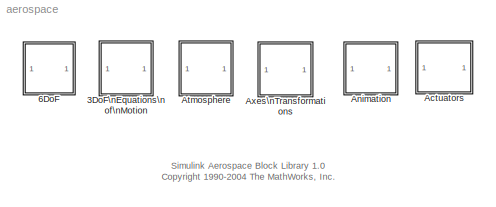
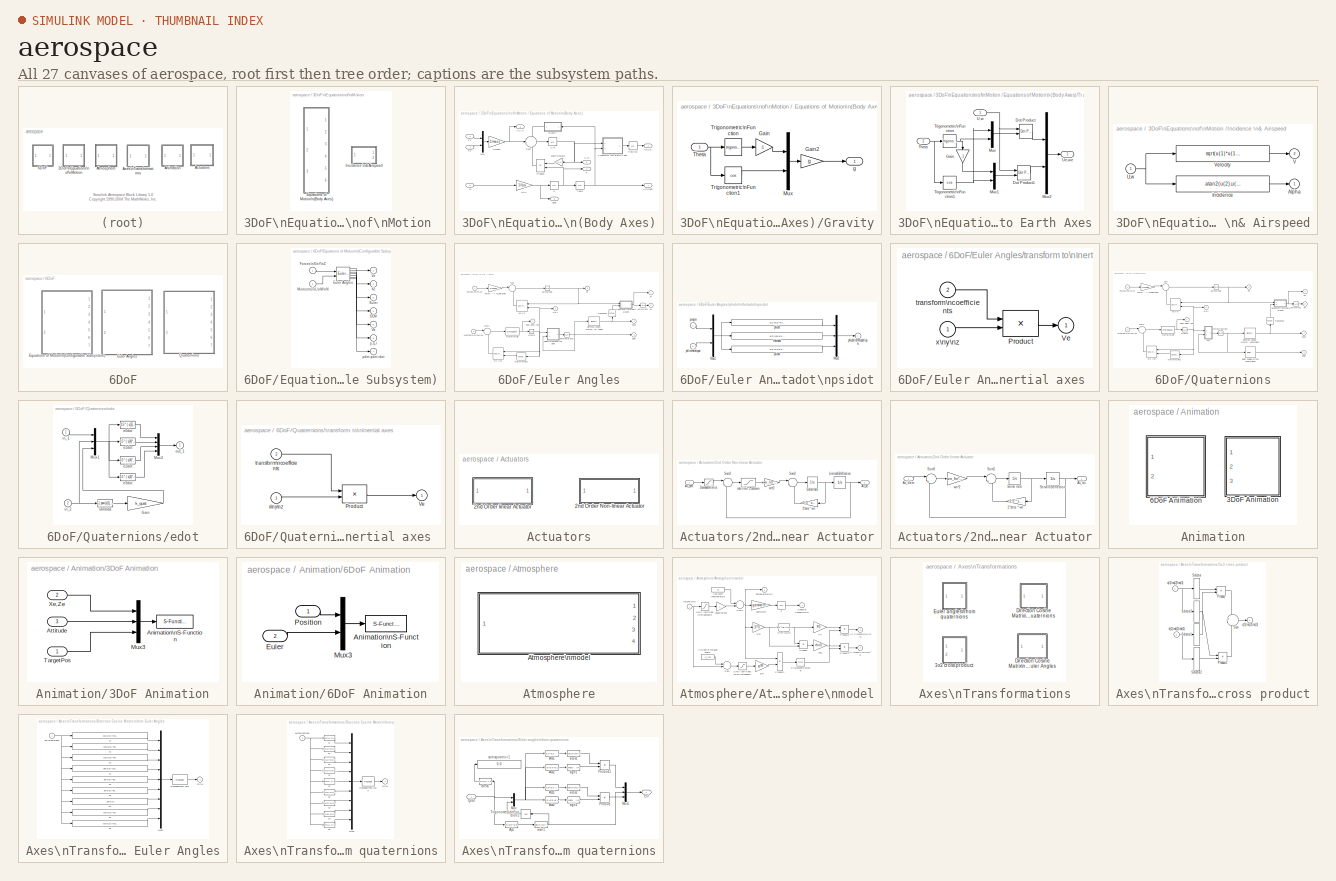
[diagram: thumbnail index - all 27 canvases of the model, root first then tree order]
MODEL aerospace
KIND library
BLOCK [SubSystem] 3DoF\nEquations\nof\nMotion 
  MinAlgLoopOccurrences = off
  Ports = []
  PropExecContextAcrossSSBoundary = on
  RTWSystemCode = Auto
  TreatAsAtomicUnit = off
BLOCK [SubSystem] 3DoF\nEquations\nof\nMotion / Equations of Motion\n(Body Axes)
  MaskCallbackString = |||||||
  MaskDescription = Integrates the 3 degrees of freedom equations of motion to determine body position, velocity, attitude and related values.
  MaskEnableString = on,on,on,on,on,on,on,on
  MaskHelp = <p>This block models the 3 degrees of freedom equations of motion to determine body position, velocity, attitude and other related values.</p>\n\n<p>A 3-down configuration for the body coordinates ( X axis pointing toward nose of body, and  Z axis pointing towards earth) is used in this block.</p>\n\n<p>Gravitational force on the body is already accounted for in this block.</p>\n\n<p>Some block ou...<+1100ch>
  MaskIconFrame = on
  MaskIconOpaque = on
  MaskIconRotate = none
  MaskIconUnits = autoscale
  MaskInitialization = U0 = v_ini*cos(alpha_ini);\nw0 = v_ini*sin(alpha_ini);
  MaskPromptString = Initial velocity [m/s]:|Initial body attitude [rad]:|Initial incidence [rad]:|Initial body rotation rate [rad/sec]:|Initial position (x z) [m]:|Mass [Kg]:|Inertia [Kg.m^2]:|Acceleration due to gravity [m/s/s]:
  MaskStyleString = edit,edit,edit,edit,edit,edit,edit,edit
  MaskTabNameString = ,,,,,,,
  MaskToolTipString = on,on,on,on,on,on,on,on
  MaskTunableValueString = on,on,on,on,on,on,on,on
  MaskType = 3 DOF equations of motion
  MaskValueString = 100|0|0|0|[0 0]|1|1|9.81
  MaskVarAliasString = ,,,,,,,
  MaskVariables = v_ini=@1;theta_ini=@2;alpha_ini=@3;q_ini=@4;pos_ini=@5;mass=@6;Iyy=@7;g=@8;
  MaskVisibilityString = on,on,on,on,on,on,on,on
  MinAlgLoopOccurrences = off
  Ports = [3, 6]
  PropExecContextAcrossSSBoundary = on
  RTWSystemCode = Auto
  TreatAsAtomicUnit = off
BLOCK [Gain] 3DoF\nEquations\nof\nMotion / Equations of Motion\n(Body Axes)/1//Iyy
  Gain = 1/Iyy
BLOCK [Gain] 3DoF\nEquations\nof\nMotion / Equations of Motion\n(Body Axes)/1//mass
  Gain = 1/mass
BLOCK [Outport] 3DoF\nEquations\nof\nMotion / Equations of Motion\n(Body Axes)/Attitude
  BusOutputAsStruct = off
  IconDisplay = Port number
  InitialOutput = 0
BLOCK [Outport] 3DoF\nEquations\nof\nMotion / Equations of Motion\n(Body Axes)/Ax,Az
  BusOutputAsStruct = off
  IconDisplay = Port number
  InitialOutput = 0
  Port = 6
BLOCK [Inport] 3DoF\nEquations\nof\nMotion / Equations of Motion\n(Body Axes)/Fx
  IconDisplay = Port number
  LatchInput = off
  Port = 1
BLOCK [Inport] 3DoF\nEquations\nof\nMotion / Equations of Motion\n(Body Axes)/Fz
  IconDisplay = Port number
  LatchInput = off
  Port = 2
BLOCK [SubSystem] 3DoF\nEquations\nof\nMotion / Equations of Motion\n(Body Axes)/Gravity
  MinAlgLoopOccurrences = off
  Ports = [1, 1]
  PropExecContextAcrossSSBoundary = on
  RTWSystemCode = Auto
  TreatAsAtomicUnit = off
BLOCK [Gain] 3DoF\nEquations\nof\nMotion / Equations of Motion\n(Body Axes)/Gravity/Gain
  Gain = -1
BLOCK [Gain] 3DoF\nEquations\nof\nMotion / Equations of Motion\n(Body Axes)/Gravity/Gain2
  Gain = g
BLOCK [Mux] 3DoF\nEquations\nof\nMotion / Equations of Motion\n(Body Axes)/Gravity/Mux
  DisplayOption = bar
  Inputs = 2
  Ports = [2, 1]
BLOCK [Inport] 3DoF\nEquations\nof\nMotion / Equations of Motion\n(Body Axes)/Gravity/Theta
  IconDisplay = Port number
  LatchInput = off
  Port = 1
BLOCK [Trigonometry] 3DoF\nEquations\nof\nMotion / Equations of Motion\n(Body Axes)/Gravity/Trigonometric\nFunction
  Ports = [1, 1]
BLOCK [Trigonometry] 3DoF\nEquations\nof\nMotion / Equations of Motion\n(Body Axes)/Gravity/Trigonometric\nFunction1
  Operator = cos
  Ports = [1, 1]
BLOCK [Outport] 3DoF\nEquations\nof\nMotion / Equations of Motion\n(Body Axes)/Gravity/g
  BusOutputAsStruct = off
  IconDisplay = Port number
BLOCK [Inport] 3DoF\nEquations\nof\nMotion / Equations of Motion\n(Body Axes)/M
  IconDisplay = Port number
  LatchInput = off
  Port = 3
BLOCK [Gain] 3DoF\nEquations\nof\nMotion / Equations of Motion\n(Body Axes)/Matrix\nGain
  Gain = [0 -1;1 0]
  Multiplication = Matrix(K*u)
BLOCK [Mux] 3DoF\nEquations\nof\nMotion / Equations of Motion\n(Body Axes)/Mux
  DisplayOption = bar
  Inputs = 2
  Ports = [2, 1]
BLOCK [Integrator] 3DoF\nEquations\nof\nMotion / Equations of Motion\n(Body Axes)/Position
  InitialCondition = pos_ini
  Ports = [1, 1]
BLOCK [Product] 3DoF\nEquations\nof\nMotion / Equations of Motion\n(Body Axes)/Product
  Ports = [2, 1]
BLOCK [Sum] 3DoF\nEquations\nof\nMotion / Equations of Motion\n(Body Axes)/Sum
  IconShape = round
  Inputs = +++
  Ports = [3, 1]
BLOCK [Integrator] 3DoF\nEquations\nof\nMotion / Equations of Motion\n(Body Axes)/Theta
  InitialCondition = theta_ini
  Ports = [1, 1]
BLOCK [SubSystem] 3DoF\nEquations\nof\nMotion / Equations of Motion\n(Body Axes)/Transform \nto Earth Axes
  MinAlgLoopOccurrences = off
  Ports = [2, 1]
  PropExecContextAcrossSSBoundary = on
  RTWSystemCode = Auto
  TreatAsAtomicUnit = off
BLOCK [Reference] 3DoF\nEquations\nof\nMotion / Equations of Motion\n(Body Axes)/Transform \nto Earth Axes/Dot Product  REF=simulink/Math\nOperations/Dot Product
  Ports = [2, 1]
  SourceBlock = simulink/Math\nOperations/Dot Product
  SourceType = Dot Product
BLOCK [Reference] 3DoF\nEquations\nof\nMotion / Equations of Motion\n(Body Axes)/Transform \nto Earth Axes/Dot Product1  REF=simulink/Math\nOperations/Dot Product
  Ports = [2, 1]
  SourceBlock = simulink/Math\nOperations/Dot Product
  SourceType = Dot Product
BLOCK [Gain] 3DoF\nEquations\nof\nMotion / Equations of Motion\n(Body Axes)/Transform \nto Earth Axes/Gain
  Gain = -1
BLOCK [Mux] 3DoF\nEquations\nof\nMotion / Equations of Motion\n(Body Axes)/Transform \nto Earth Axes/Mux
  DisplayOption = bar
  Inputs = 2
  Ports = [2, 1]
BLOCK [Mux] 3DoF\nEquations\nof\nMotion / Equations of Motion\n(Body Axes)/Transform \nto Earth Axes/Mux1
  DisplayOption = bar
  Inputs = 2
  Ports = [2, 1]
BLOCK [Mux] 3DoF\nEquations\nof\nMotion / Equations of Motion\n(Body Axes)/Transform \nto Earth Axes/Mux2
  DisplayOption = bar
  Inputs = 2
  Ports = [2, 1]
BLOCK [Inport] 3DoF\nEquations\nof\nMotion / Equations of Motion\n(Body Axes)/Transform \nto Earth Axes/Theta
  IconDisplay = Port number
  LatchInput = off
  Port = 2
BLOCK [Trigonometry] 3DoF\nEquations\nof\nMotion / Equations of Motion\n(Body Axes)/Transform \nto Earth Axes/Trigonometric\nFunction
  Ports = [1, 1]
BLOCK [Trigonometry] 3DoF\nEquations\nof\nMotion / Equations of Motion\n(Body Axes)/Transform \nto Earth Axes/Trigonometric\nFunction1
  Operator = cos
  Ports = [1, 1]
BLOCK [Inport] 3DoF\nEquations\nof\nMotion / Equations of Motion\n(Body Axes)/Transform \nto Earth Axes/U,w
  IconDisplay = Port number
  LatchInput = off
  Port = 1
BLOCK [Outport] 3DoF\nEquations\nof\nMotion / Equations of Motion\n(Body Axes)/Transform \nto Earth Axes/Ue,we
  BusOutputAsStruct = off
  IconDisplay = Port number
BLOCK [Integrator] 3DoF\nEquations\nof\nMotion / Equations of Motion\n(Body Axes)/U,w
  InitialCondition = [U0 w0]
  Ports = [1, 1]
BLOCK [Outport] 3DoF\nEquations\nof\nMotion / Equations of Motion\n(Body Axes)/U,w 
  BusOutputAsStruct = off
  IconDisplay = Port number
  InitialOutput = 0
  Port = 5
BLOCK [Outport] 3DoF\nEquations\nof\nMotion / Equations of Motion\n(Body Axes)/Xe,Ze
  BusOutputAsStruct = off
  IconDisplay = Port number
  InitialOutput = 0
  Port = 4
BLOCK [Integrator] 3DoF\nEquations\nof\nMotion / Equations of Motion\n(Body Axes)/q
  InitialCondition = q_ini
  Ports = [1, 1]
BLOCK [Outport] 3DoF\nEquations\nof\nMotion / Equations of Motion\n(Body Axes)/q 
  BusOutputAsStruct = off
  IconDisplay = Port number
  InitialOutput = 0
  Port = 2
BLOCK [Outport] 3DoF\nEquations\nof\nMotion / Equations of Motion\n(Body Axes)/qdot
  BusOutputAsStruct = off
  IconDisplay = Port number
  InitialOutput = 0
  Port = 3
BLOCK [SubSystem] 3DoF\nEquations\nof\nMotion /Incidence \n& Airspeed
  MaskDescription = Calculates the angle between the body and the velocity vector (incidence) and the velocity magnitude from the components in body axes (U,w).
  MaskHelp = <p>This block calculates the angle between the body and the velocity vector (incidence) and the velocity magnitude (airspeed) from the velocity components in body axes (U,w).</p>\n\n<p> A 3-down configuration ( X axis pointing toward nose of body, and  Z axis pointing towards earth) is used in this block.</p>\n\n<p>The block input contains more than one signal as described below.</p>\n\n<p><H4>Blo...<+281ch>
  MaskIconFrame = on
  MaskIconOpaque = on
  MaskIconRotate = none
  MaskIconUnits = autoscale
  MaskType = Incidence and Airspeed
  MinAlgLoopOccurrences = off
  Ports = [1, 2]
  PropExecContextAcrossSSBoundary = on
  RTWSystemCode = Auto
  TreatAsAtomicUnit = off
BLOCK [Outport] 3DoF\nEquations\nof\nMotion /Incidence \n& Airspeed/Alpha
  BusOutputAsStruct = off
  IconDisplay = Port number
  InitialOutput = 0
BLOCK [Fcn] 3DoF\nEquations\nof\nMotion /Incidence \n& Airspeed/Incidence
  Expr = atan2(u(2),u(1))
BLOCK [Inport] 3DoF\nEquations\nof\nMotion /Incidence \n& Airspeed/U,w
  IconDisplay = Port number
  LatchInput = off
  Port = 1
BLOCK [Outport] 3DoF\nEquations\nof\nMotion /Incidence \n& Airspeed/V
  BusOutputAsStruct = off
  IconDisplay = Port number
  InitialOutput = 0
  Port = 2
BLOCK [Fcn] 3DoF\nEquations\nof\nMotion /Incidence \n& Airspeed/Velocity
  Expr = sqrt(u(1)*u(1)+u(2)*u(2))
BLOCK [SubSystem] 6DoF
  MinAlgLoopOccurrences = off
  Ports = []
  PropExecContextAcrossSSBoundary = on
  RTWSystemCode = Auto
  TreatAsAtomicUnit = off
BLOCK [SubSystem] 6DoF/Equations of Motion\n(Configurable Subsystem)
  BlockChoice = Euler Angles
  MemberBlocks = Euler Angles,Quaternions
  MinAlgLoopOccurrences = off
  Ports = [2, 7]
  PropExecContextAcrossSSBoundary = on
  RTWSystemCode = Auto
  TemplateBlock = self
  TreatAsAtomicUnit = off
BLOCK [Outport] 6DoF/Equations of Motion\n(Configurable Subsystem)/DCM
  BusOutputAsStruct = off
  IconDisplay = Port number
  Port = 4
BLOCK [Outport] 6DoF/Equations of Motion\n(Configurable Subsystem)/Euler
  BusOutputAsStruct = off
  IconDisplay = Port number
  Port = 3
BLOCK [Reference] 6DoF/Equations of Motion\n(Configurable Subsystem)/Euler Angles  REF=aerospace/6DoF/Euler Angles  (lib defined in mdl_cf564d925549, slx_1354fe9238a2, +3 more)
  Inertia = eye(3)
  Mass = 1.0
  Ports = [2, 7]
  SourceBlock = aerospace/6DoF/Euler Angles
  SourceType = 6DoF Equations of Motion
  Vm_0 = [0 0 0]
  eul_0 = [0 0 0]
  pm_0 = [0 0 0]
  xme_0 = [0 0 0]
BLOCK [Inport] 6DoF/Equations of Motion\n(Configurable Subsystem)/Forces\nX\nY\nZ
  IconDisplay = Port number
  LatchInput = off
  Port = 1
BLOCK [Inport] 6DoF/Equations of Motion\n(Configurable Subsystem)/Moments\nL\nM\nN
  IconDisplay = Port number
  LatchInput = off
  Port = 2
BLOCK [Outport] 6DoF/Equations of Motion\n(Configurable Subsystem)/Vb
  BusOutputAsStruct = off
  IconDisplay = Port number
  Port = 5
BLOCK [Outport] 6DoF/Equations of Motion\n(Configurable Subsystem)/Ve
  BusOutputAsStruct = off
  IconDisplay = Port number
BLOCK [Outport] 6DoF/Equations of Motion\n(Configurable Subsystem)/Xe
  BusOutputAsStruct = off
  IconDisplay = Port number
  Port = 2
BLOCK [Outport] 6DoF/Equations of Motion\n(Configurable Subsystem)/p,q,r
  BusOutputAsStruct = off
  IconDisplay = Port number
  Port = 6
BLOCK [Outport] 6DoF/Equations of Motion\n(Configurable Subsystem)/pdot,qdot,rdot
  BusOutputAsStruct = off
  IconDisplay = Port number
  Port = 7
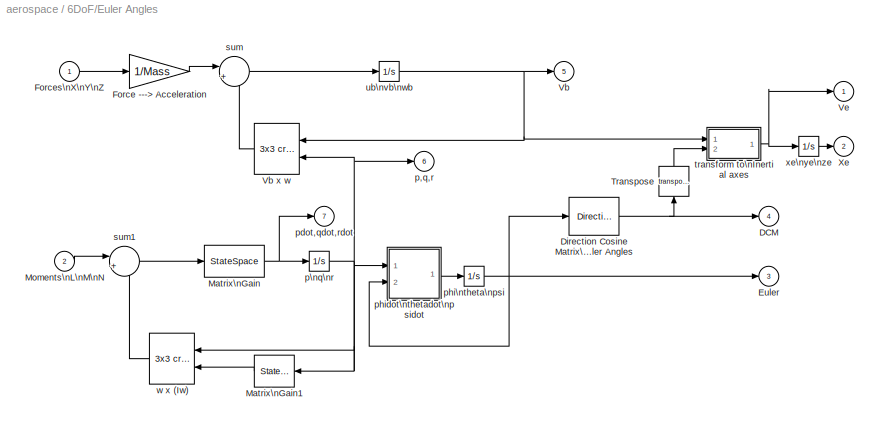
BLOCK [SubSystem] 6DoF/Euler Angles
  MaskCallbackString = |||||
  MaskDescription = Integrates the 6 degrees of freedom equations of motion using an euler angle representation for the orientation of the body in space.
  MaskDisplay = disp('Euler\\nAngles')
  MaskEnableString = on,on,on,on,on,on
  MaskHelp = <p>This block models a 6 degrees of freedom equations of motion for a rigid body using an euler angle representation.</p>\n\n<pThe block inputs and outputs contain more than one signal as described below.</p>\n\n<p><H4>Block Vector  Input - Forces X Y Z</H4>\n<ul>\n    <li>Forces on the body in X direction - X </li>\n    <li>Forces on the body in Y direction - Y </li>\n    <li>Forces on the body i...<+1794ch>
  MaskIconFrame = on
  MaskIconOpaque = off
  MaskIconRotate = none
  MaskIconUnits = autoscale
  MaskPromptString = Initial position in inertial axes [Xe,Ye,Ze]:|Initial velocity in body axes [U,v,w]:|Initial Euler orientation [roll, pitch, yaw]:|Initial body rotation rates [p,q,r]:|Mass:|Inertia matrix:
  MaskStyleString = edit,edit,edit,edit,edit,edit
  MaskTabNameString = ,,,,,
  MaskToolTipString = on,on,on,on,on,on
  MaskTunableValueString = on,on,on,on,on,on
  MaskType = 6DoF Equations of Motion
  MaskValueString = [0 0 0]|[0 0 0]|[0 0 0]|[0 0 0]|1.0|eye(3)
  MaskVarAliasString = ,,,,,
  MaskVariables = xme_0=@1;Vm_0=@2;eul_0=@3;pm_0=@4;Mass=@5;Inertia=@6;
  MaskVisibilityString = on,on,on,on,on,on
  MinAlgLoopOccurrences = off
  Ports = [2, 7]
  PropExecContextAcrossSSBoundary = on
  RTWSystemCode = Auto
  TreatAsAtomicUnit = off
BLOCK [Outport] 6DoF/Euler Angles/DCM
  BusOutputAsStruct = off
  IconDisplay = Port number
  InitialOutput = 0
  Port = 4
BLOCK [Reference] 6DoF/Euler Angles/Direction Cosine Matrix\nfrom Euler Angles  REF=aerospace/Axes\nTransformations/Direction Cosine Matrix\nfrom Euler Angles  (lib defined in mdl_cf564d925549, slx_1354fe9238a2, +3 more)
  Ports = [1, 1]
  SourceBlock = aerospace/Axes\nTransformations/Direction Cosine Matrix\nfrom Euler Angles
  SourceType = Direction Cosine Matrix
BLOCK [Outport] 6DoF/Euler Angles/Euler
  BusOutputAsStruct = off
  IconDisplay = Port number
  InitialOutput = 0
  Port = 3
BLOCK [Gain] 6DoF/Euler Angles/Force ---> Acceleration
  Gain = 1/Mass
BLOCK [Inport] 6DoF/Euler Angles/Forces\nX\nY\nZ
  IconDisplay = Port number
  LatchInput = off
  Port = 1
BLOCK [StateSpace] 6DoF/Euler Angles/Matrix\nGain
  A = []
  B = []
  C = []
  D = K
  MaskDescription = Matrix Gain.
  MaskDisplay = disp('Inertia^(-1)')
  MaskEnableString = on
  MaskHelp = Multiplies input vector by entered matrix to produce output vector (y=Au).
  MaskIconFrame = on
  MaskIconOpaque = on
  MaskIconRotate = none
  MaskIconUnits = autoscale
  MaskInitialization = K = @1;
  MaskPromptString = Gain matrix:
  MaskStyleString = edit
  MaskToolTipString = on
  MaskTunableValueString = on
  MaskType = Matrix Gain
  MaskValueString = inv(Inertia)
  MaskVisibilityString = on
BLOCK [StateSpace] 6DoF/Euler Angles/Matrix\nGain1
  A = []
  B = []
  C = []
  D = K
  MaskDescription = Matrix Gain.
  MaskDisplay = disp('Inertia')
  MaskEnableString = on
  MaskHelp = Multiplies input vector by entered matrix to produce output vector (y=Au).
  MaskIconFrame = on
  MaskIconOpaque = on
  MaskIconRotate = none
  MaskIconUnits = autoscale
  MaskInitialization = K = @1;
  MaskPromptString = Gain matrix:
  MaskStyleString = edit
  MaskToolTipString = on
  MaskTunableValueString = on
  MaskType = Matrix Gain
  MaskValueString = Inertia
  MaskVisibilityString = on
BLOCK [Inport] 6DoF/Euler Angles/Moments\nL\nM\nN
  IconDisplay = Port number
  LatchInput = off
  Port = 2
BLOCK [Math] 6DoF/Euler Angles/Transpose
  Operator = transpose
  Ports = [1, 1]
BLOCK [Outport] 6DoF/Euler Angles/Vb
  BusOutputAsStruct = off
  IconDisplay = Port number
  InitialOutput = 0
  Port = 5
BLOCK [Reference] 6DoF/Euler Angles/Vb x w  REF=aerospace/Axes\nTransformations/3x3 cross product  (lib defined in mdl_cf564d925549, slx_1354fe9238a2, +3 more)
  Ports = [2, 1]
  SourceBlock = aerospace/Axes\nTransformations/3x3 cross product
  SourceType = Cross Product
BLOCK [Outport] 6DoF/Euler Angles/Ve
  BusOutputAsStruct = off
  IconDisplay = Port number
  InitialOutput = 0
BLOCK [Outport] 6DoF/Euler Angles/Xe
  BusOutputAsStruct = off
  IconDisplay = Port number
  InitialOutput = 0
  Port = 2
BLOCK [Outport] 6DoF/Euler Angles/p,q,r
  BusOutputAsStruct = off
  IconDisplay = Port number
  InitialOutput = 0
  Port = 6
BLOCK [Integrator] 6DoF/Euler Angles/p\nq\nr
  InitialCondition = pm_0
  Ports = [1, 1]
BLOCK [Outport] 6DoF/Euler Angles/pdot,qdot,rdot
  BusOutputAsStruct = off
  IconDisplay = Port number
  InitialOutput = 0
  Port = 7
BLOCK [Integrator] 6DoF/Euler Angles/phi\ntheta\npsi
  InitialCondition = eul_0
  Ports = [1, 1]
BLOCK [SubSystem] 6DoF/Euler Angles/phidot\nthetadot\npsidot
  MinAlgLoopOccurrences = off
  Ports = [2, 1]
  PropExecContextAcrossSSBoundary = on
  RTWSystemCode = Auto
  ShowPortLabels = off
  TreatAsAtomicUnit = off
BLOCK [Mux] 6DoF/Euler Angles/phidot\nthetadot\npsidot/Mux1
  DisplayOption = bar
  Inputs = [3 3]
  Ports = [2, 1]
BLOCK [Mux] 6DoF/Euler Angles/phidot\nthetadot\npsidot/Mux2
  DisplayOption = bar
  Inputs = 3
  Ports = [3, 1]
BLOCK [Inport] 6DoF/Euler Angles/phidot\nthetadot\npsidot/p\nq\nr
  IconDisplay = Port number
  LatchInput = off
  Port = 1
BLOCK [Inport] 6DoF/Euler Angles/phidot\nthetadot\npsidot/phi\ntheta\npsi
  IconDisplay = Port number
  LatchInput = off
  Port = 2
BLOCK [Fcn] 6DoF/Euler Angles/phidot\nthetadot\npsidot/phidot
  Expr = u[1]+u[2]*sin(u[4])*tan(u[5])+u[3]*cos(u[4])*tan(u[5])
BLOCK [Outport] 6DoF/Euler Angles/phidot\nthetadot\npsidot/phidot\nthetadot\npsi
  BusOutputAsStruct = off
  IconDisplay = Port number
  InitialOutput = 0
BLOCK [Fcn] 6DoF/Euler Angles/phidot\nthetadot\npsidot/psidot
  Expr = u[2]*sin(u[4])/cos(u[5])+u[3]*cos(u[4])/cos(u[5])
BLOCK [Fcn] 6DoF/Euler Angles/phidot\nthetadot\npsidot/thetadot
  Expr = u[2]*cos(u[4])-u[3]*sin(u[4])
BLOCK [Sum] 6DoF/Euler Angles/sum
  IconShape = round
  Inputs = |++
  Ports = [2, 1]
BLOCK [Sum] 6DoF/Euler Angles/sum1
  IconShape = round
  Inputs = |+-
  Ports = [2, 1]
BLOCK [SubSystem] 6DoF/Euler Angles/transform to\nInertial axes 
  MaskDisplay = disp('L_EB')
  MaskIconFrame = on
  MaskIconOpaque = on
  MaskIconRotate = none
  MaskIconUnits = autoscale
  MaskType = Vector Transformation
  MinAlgLoopOccurrences = off
  Ports = [2, 1]
  PropExecContextAcrossSSBoundary = on
  RTWSystemCode = Auto
  ShowPortLabels = off
  TreatAsAtomicUnit = off
BLOCK [Product] 6DoF/Euler Angles/transform to\nInertial axes /Product
  Multiplication = Matrix(*)
  Ports = [2, 1]
BLOCK [Outport] 6DoF/Euler Angles/transform to\nInertial axes /Ve
  BusOutputAsStruct = off
  IconDisplay = Port number
  InitialOutput = 0
BLOCK [Inport] 6DoF/Euler Angles/transform to\nInertial axes /transform\ncoefficients
  IconDisplay = Port number
  LatchInput = off
  Port = 2
BLOCK [Inport] 6DoF/Euler Angles/transform to\nInertial axes /x\ny\nz
  IconDisplay = Port number
  LatchInput = off
  Port = 1
BLOCK [Integrator] 6DoF/Euler Angles/ub\nvb\nwb
  InitialCondition = Vm_0
  Ports = [1, 1]
BLOCK [Reference] 6DoF/Euler Angles/w x (Iw)  REF=aerospace/Axes\nTransformations/3x3 cross product  (lib defined in mdl_cf564d925549, slx_1354fe9238a2, +3 more)
  Ports = [2, 1]
  SourceBlock = aerospace/Axes\nTransformations/3x3 cross product
  SourceType = Cross Product
BLOCK [Integrator] 6DoF/Euler Angles/xe\nye\nze
  InitialCondition = xme_0
  Ports = [1, 1]
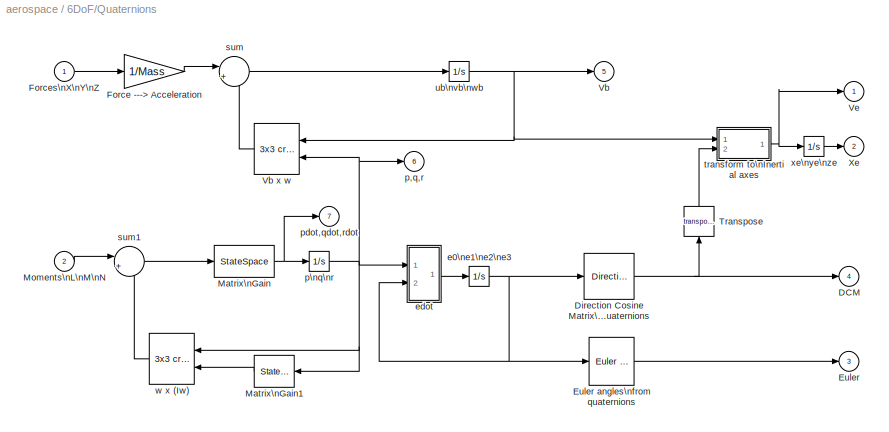
BLOCK [SubSystem] 6DoF/Quaternions
  MaskCallbackString = |||||
  MaskDescription = Integrates the 6 degrees of freedom equations of motion using a quaternion representation for the orientation of the body in space.
  MaskDisplay = disp('Quaternions')
  MaskEnableString = on,on,on,on,on,on
  MaskHelp = <p>This block models a 6 degrees of freedom equations of motion for a rigid body using a quaternion representation.</p>\n\n<pThe block inputs and outputs contain more than one signal as described below.</p>\n\n<p><H4>Block Vector  Input - Forces X Y Z</H4>\n<ul>\n    <li>Forces on the body in X direction - X </li>\n    <li>Forces on the body in Y direction - Y </li>\n    <li>Forces on the body in ...<+1792ch>
  MaskIconFrame = on
  MaskIconOpaque = off
  MaskIconRotate = none
  MaskIconUnits = autoscale
  MaskInitialization = %%% factor used for quaternion calculation\nk_quat=100;\n\n%%% initial orientation of platform\nph=eul_0(1);\nth=eul_0(2);\nps=eul_0(3);\ne0_0 = cos(0.5*ps)*cos(0.5*th)*cos(0.5*ph) +sin(0.5*ps)*sin(0.5*th)*sin(0.5*ph);\ne1_0 = cos(0.5*ps)*cos(0.5*th)*sin(0.5*ph) - sin(0.5*ps)*sin(0.5*th)*cos(0.5*ph);\ne2_0 = cos(0.5*ps)*sin(0.5*th)*cos(0.5*ph) +sin(0.5*ps)*cos(0.5*th)*sin(0.5*ph);\ne3_0 =-cos(0.5*...<+69ch>
  MaskPromptString = Initial position in inertial axes [Xe,Ye,Ze]:|Initial velocity in body axes [U,v,w]:|Initial Euler orientation [roll, pitch, yaw]:|Initial body rotation rates [p,q,r]:|Mass:|Inertia matrix:
  MaskStyleString = edit,edit,edit,edit,edit,edit
  MaskTabNameString = ,,,,,
  MaskToolTipString = on,on,on,on,on,on
  MaskTunableValueString = on,on,on,on,on,on
  MaskType = 6DoF Equations of Motion
  MaskValueString = [0 0 0]|[0 0 0]|[0 0 0]|[0 0 0]|1.0|eye(3)
  MaskVarAliasString = ,,,,,
  MaskVariables = xme_0=@1;Vm_0=@2;eul_0=@3;pm_0=@4;Mass=@5;Inertia=@6;
  MaskVisibilityString = on,on,on,on,on,on
  MinAlgLoopOccurrences = off
  Ports = [2, 7]
  PropExecContextAcrossSSBoundary = on
  RTWSystemCode = Auto
  TreatAsAtomicUnit = off
BLOCK [Outport] 6DoF/Quaternions/DCM
  BusOutputAsStruct = off
  IconDisplay = Port number
  InitialOutput = 0
  Port = 4
BLOCK [Reference] 6DoF/Quaternions/Direction Cosine Matrix\nfrom quaternions  REF=aerospace/Axes\nTransformations/Direction Cosine Matrix\nfrom quaternions  (lib defined in mdl_cf564d925549, slx_1354fe9238a2, +3 more)
  Ports = [1, 1]
  SourceBlock = aerospace/Axes\nTransformations/Direction Cosine Matrix\nfrom quaternions
  SourceType = Direction Cosine Matrix
BLOCK [Outport] 6DoF/Quaternions/Euler
  BusOutputAsStruct = off
  IconDisplay = Port number
  InitialOutput = 0
  Port = 3
BLOCK [Reference] 6DoF/Quaternions/Euler angles\nfrom quaternions  REF=aerospace/Axes\nTransformations/Euler angles\nfrom quaternions  (lib defined in mdl_cf564d925549, slx_1354fe9238a2, +3 more)
  Ports = [1, 1]
  SourceBlock = aerospace/Axes\nTransformations/Euler angles\nfrom quaternions
  SourceType = Euler angles
BLOCK [Gain] 6DoF/Quaternions/Force ---> Acceleration
  Gain = 1/Mass
BLOCK [Inport] 6DoF/Quaternions/Forces\nX\nY\nZ
  IconDisplay = Port number
  LatchInput = off
  Port = 1
BLOCK [StateSpace] 6DoF/Quaternions/Matrix\nGain
  A = []
  B = []
  C = []
  D = K
  MaskDescription = Matrix Gain.
  MaskDisplay = disp('Inertia^(-1)')
  MaskEnableString = on
  MaskHelp = Multiplies input vector by entered matrix to produce output vector (y=Au).
  MaskIconFrame = on
  MaskIconOpaque = on
  MaskIconRotate = none
  MaskIconUnits = autoscale
  MaskInitialization = K = @1;
  MaskPromptString = Gain matrix:
  MaskStyleString = edit
  MaskToolTipString = on
  MaskTunableValueString = on
  MaskType = Matrix Gain
  MaskValueString = inv(Inertia)
  MaskVisibilityString = on
BLOCK [StateSpace] 6DoF/Quaternions/Matrix\nGain1
  A = []
  B = []
  C = []
  D = K
  MaskDescription = Matrix Gain.
  MaskDisplay = disp('Inertia')
  MaskEnableString = on
  MaskHelp = Multiplies input vector by entered matrix to produce output vector (y=Au).
  MaskIconFrame = on
  MaskIconOpaque = on
  MaskIconRotate = none
  MaskIconUnits = autoscale
  MaskInitialization = K = @1;
  MaskPromptString = Gain matrix:
  MaskStyleString = edit
  MaskToolTipString = on
  MaskTunableValueString = on
  MaskType = Matrix Gain
  MaskValueString = Inertia
  MaskVisibilityString = on
BLOCK [Inport] 6DoF/Quaternions/Moments\nL\nM\nN
  IconDisplay = Port number
  LatchInput = off
  Port = 2
BLOCK [Math] 6DoF/Quaternions/Transpose
  Operator = transpose
  Ports = [1, 1]
BLOCK [Outport] 6DoF/Quaternions/Vb
  BusOutputAsStruct = off
  IconDisplay = Port number
  InitialOutput = 0
  Port = 5
BLOCK [Reference] 6DoF/Quaternions/Vb x w  REF=aerospace/Axes\nTransformations/3x3 cross product  (lib defined in mdl_cf564d925549, slx_1354fe9238a2, +3 more)
  Ports = [2, 1]
  SourceBlock = aerospace/Axes\nTransformations/3x3 cross product
  SourceType = Cross Product
BLOCK [Outport] 6DoF/Quaternions/Ve
  BusOutputAsStruct = off
  IconDisplay = Port number
  InitialOutput = 0
BLOCK [Outport] 6DoF/Quaternions/Xe
  BusOutputAsStruct = off
  IconDisplay = Port number
  InitialOutput = 0
  Port = 2
BLOCK [Integrator] 6DoF/Quaternions/e0\ne1\ne2\ne3
  InitialCondition = [e0_0 e1_0 e2_0 e3_0]
  Ports = [1, 1]
BLOCK [SubSystem] 6DoF/Quaternions/edot
  MinAlgLoopOccurrences = off
  Ports = [2, 1]
  PropExecContextAcrossSSBoundary = on
  RTWSystemCode = Auto
  ShowPortLabels = off
  TreatAsAtomicUnit = off
BLOCK [Gain] 6DoF/Quaternions/edot/Gain
  Gain = k_quat
BLOCK [Mux] 6DoF/Quaternions/edot/Mux1
  DisplayOption = bar
  Inputs = [3 4 1]
  Ports = [3, 1]
BLOCK [Mux] 6DoF/Quaternions/edot/Mux2
  DisplayOption = bar
  Ports = [4, 1]
BLOCK [Fcn] 6DoF/Quaternions/edot/e0dot
  Expr = -0.5 * ( u[5]*u[1]+u[6]*u[2]+u[7]*u[3] ) + u[8]*u[4]
BLOCK [Fcn] 6DoF/Quaternions/edot/e1dot
  Expr = 0.5 * ( u[4]*u[1]+u[6]*u[3]-u[7]*u[2] ) + u[8]*u[5]
BLOCK [Fcn] 6DoF/Quaternions/edot/e2dot
  Expr = 0.5 * ( u[4]*u[2]+u[7]*u[1]-u[5]*u[3] ) + u[8]*u[6]
BLOCK [Fcn] 6DoF/Quaternions/edot/e3dot
  Expr = 0.5 * ( u[4]*u[3]+u[5]*u[2]-u[6]*u[1] ) + u[8]*u[7]
BLOCK [Inport] 6DoF/Quaternions/edot/in_1
  IconDisplay = Port number
  LatchInput = off
  Port = 1
BLOCK [Inport] 6DoF/Quaternions/edot/in_2
  IconDisplay = Port number
  LatchInput = off
  Port = 2
BLOCK [Fcn] 6DoF/Quaternions/edot/lambda
  Expr = 1-( pow(u[1],2) + pow(u[2],2) + pow(u[3],2) + pow(u[4],2) )
BLOCK [Outport] 6DoF/Quaternions/edot/out_1
  BusOutputAsStruct = off
  IconDisplay = Port number
  InitialOutput = 0
BLOCK [Outport] 6DoF/Quaternions/p,q,r
  BusOutputAsStruct = off
  IconDisplay = Port number
  InitialOutput = 0
  Port = 6
BLOCK [Integrator] 6DoF/Quaternions/p\nq\nr
  InitialCondition = pm_0
  Ports = [1, 1]
BLOCK [Outport] 6DoF/Quaternions/pdot,qdot,rdot
  BusOutputAsStruct = off
  IconDisplay = Port number
  InitialOutput = 0
  Port = 7
BLOCK [Sum] 6DoF/Quaternions/sum
  IconShape = round
  Inputs = |++
  Ports = [2, 1]
BLOCK [Sum] 6DoF/Quaternions/sum1
  IconShape = round
  Inputs = |+-
  Ports = [2, 1]
BLOCK [SubSystem] 6DoF/Quaternions/transform to\nInertial axes 
  MaskDisplay = disp('L_EB')
  MaskIconFrame = on
  MaskIconOpaque = on
  MaskIconRotate = none
  MaskIconUnits = autoscale
  MaskType = Vector Transformation
  MinAlgLoopOccurrences = off
  Ports = [2, 1]
  PropExecContextAcrossSSBoundary = on
  RTWSystemCode = Auto
  ShowPortLabels = off
  TreatAsAtomicUnit = off
BLOCK [Product] 6DoF/Quaternions/transform to\nInertial axes /Product
  Multiplication = Matrix(*)
  Ports = [2, 1]
BLOCK [Outport] 6DoF/Quaternions/transform to\nInertial axes /Ve
  BusOutputAsStruct = off
  IconDisplay = Port number
  InitialOutput = 0
BLOCK [Inport] 6DoF/Quaternions/transform to\nInertial axes /transform\ncoefficients
  IconDisplay = Port number
  LatchInput = off
  Port = 2
BLOCK [Inport] 6DoF/Quaternions/transform to\nInertial axes /x\ny\nz
  IconDisplay = Port number
  LatchInput = off
  Port = 1
BLOCK [Integrator] 6DoF/Quaternions/ub\nvb\nwb
  InitialCondition = Vm_0
  Ports = [1, 1]
BLOCK [Reference] 6DoF/Quaternions/w x (Iw)  REF=aerospace/Axes\nTransformations/3x3 cross product  (lib defined in mdl_cf564d925549, slx_1354fe9238a2, +3 more)
  Ports = [2, 1]
  SourceBlock = aerospace/Axes\nTransformations/3x3 cross product
  SourceType = Cross Product
BLOCK [Integrator] 6DoF/Quaternions/xe\nye\nze
  InitialCondition = xme_0
  Ports = [1, 1]
BLOCK [SubSystem] Actuators
  MinAlgLoopOccurrences = off
  Ports = []
  PropExecContextAcrossSSBoundary = on
  RTWSystemCode = Auto
  TreatAsAtomicUnit = off
BLOCK [SubSystem] Actuators/2nd Order Non-linear Actuator
  MaskCallbackString = |||||
  MaskDescription = Implement a second-order actuator model with saturation and rate limits, where Ac_dem is the demanded actuator position and Ac_ac is the actual actuator position.\n\nInput, output, minimum deflection, maximum deflection, and initial position are in the same position units defined by the input signal.  Maximum rate has the units of position/seconds.
  MaskEnableString = on,on,on,on,on,on
  MaskHelp = <p>This block contains a model of a second order non-linear actuator.  In addition to setting actuator initial position, damping ratio and natural frequency, block parameters allow fin deflection maximum and minimum limits to be set and a rate limit to be set for the actuator.</p>\n\n<p><H4>Block Input</H4>\n<ul>\n<li>Commanded actuator position</li>\n</ul>\n</p>\n\n<p><H4>Block Output</H4>\n<ul>\...<+47ch>
  MaskIconFrame = on
  MaskIconOpaque = on
  MaskIconRotate = none
  MaskIconUnits = autoscale
  MaskPromptString = Natural frequency:|Damping ratio:|Maximum deflection: |Minimum deflection:|Maximum rate:|Initial position:
  MaskStyleString = edit,edit,edit,edit,edit,edit
  MaskTabNameString = ,,,,,
  MaskToolTipString = on,on,on,on,on,on
  MaskTunableValueString = on,on,on,on,on,on
  MaskType = Nonlinear 2nd order actuator model
  MaskValueString = 150|0.7|20*pi/180|-20*pi/180|500*pi/180|0
  MaskVarAliasString = ,,,,,
  MaskVariables = wn_fin=@1;z_fin=@2;fin_max=@3;fin_min=@4;fin_maxrate=@5;fin_act_0=@6;
  MaskVisibilityString = on,on,on,on,on,on
  MinAlgLoopOccurrences = off
  Ports = [1, 1]
  PropExecContextAcrossSSBoundary = on
  RTWSystemCode = Auto
  TreatAsAtomicUnit = off
BLOCK [Gain] Actuators/2nd Order Non-linear Actuator/2*zeta * wn
  Gain = 2.0 * z_fin* wn_fin
BLOCK [Outport] Actuators/2nd Order Non-linear Actuator/Ac_ac
  BusOutputAsStruct = off
  IconDisplay = Port number
  InitialOutput = 0
BLOCK [Inport] Actuators/2nd Order Non-linear Actuator/Ac_dem
  IconDisplay = Port number
  LatchInput = off
  Port = 1
BLOCK [Saturate] Actuators/2nd Order Non-linear Actuator/Demand\nlimits
  LowerLimit = fin_min
  UpperLimit = fin_max
BLOCK [Integrator] Actuators/2nd Order Non-linear Actuator/Limited\nDeflection
  InitialCondition = fin_act_0
  LimitOutput = on
  LowerSaturationLimit = fin_min
  Ports = [1, 1]
  UpperSaturationLimit = fin_max
BLOCK [Integrator] Actuators/2nd Order Non-linear Actuator/Servo rate
  Ports = [1, 1]
BLOCK [Sum] Actuators/2nd Order Non-linear Actuator/Sum2
  IconShape = round
  Inputs = |+-
  Ports = [2, 1]
BLOCK [Sum] Actuators/2nd Order Non-linear Actuator/Sum3
  IconShape = round
  Inputs = |+-
  Ports = [2, 1]
BLOCK [Saturate] Actuators/2nd Order Non-linear Actuator/rate limit*2*zeta//wn
  LowerLimit = -fin_maxrate*2*z_fin/wn_fin
  UpperLimit = fin_maxrate*2*z_fin/wn_fin
BLOCK [Gain] Actuators/2nd Order Non-linear Actuator/wn^2
  Gain = wn_fin* wn_fin
BLOCK [SubSystem] Actuators/2nd Order linear Actuator
  MaskCallbackString = ||
  MaskDescription = Implement a second-order actuator model where Ac_dem is the demanded actuator position and Ac_ac is the actual actuator position.\n\nInput, output, and initial position are in the same position units defined by the input signal.
  MaskEnableString = on,on,on
  MaskHelp = <p>This block contains a model of a second order linear actuator.  Block parameters allow initial position, damping ratio and natural frequency to be set for the  actuator.</p>\n\n<p><H4>Block Input</H4>\n<ul>\n<li>Commanded actuator position</li>\n</ul>\n</p>\n\n<p><H4>Block Output</H4>\n<ul>\n<li>Actual actuator position</li>\n</ul>\n</p>
  MaskIconFrame = on
  MaskIconOpaque = on
  MaskIconRotate = none
  MaskIconUnits = autoscale
  MaskPromptString = Natural frequency:|Damping ratio:|Initial position:
  MaskStyleString = edit,edit,edit
  MaskTabNameString = ,,
  MaskToolTipString = on,on,on
  MaskTunableValueString = on,on,on
  MaskType = Linear 2nd order actuator model.
  MaskValueString = 150|0.7|0
  MaskVarAliasString = ,,
  MaskVariables = wn_fin=@1;z_fin=@2;fin_act_0=@3;
  MaskVisibilityString = on,on,on
  MinAlgLoopOccurrences = off
  Ports = [1, 1]
  PropExecContextAcrossSSBoundary = on
  RTWSystemCode = Auto
  TreatAsAtomicUnit = off
BLOCK [Gain] Actuators/2nd Order linear Actuator/2*zeta * wn
  Gain = 2.0 * z_fin* wn_fin
BLOCK [Outport] Actuators/2nd Order linear Actuator/Ac_ac
  BusOutputAsStruct = off
  IconDisplay = Port number
  InitialOutput = 0
BLOCK [Inport] Actuators/2nd Order linear Actuator/Ac_dem
  IconDisplay = Port number
  LatchInput = off
  Port = 1
BLOCK [Integrator] Actuators/2nd Order linear Actuator/Servo rate
  Ports = [1, 1]
BLOCK [Integrator] Actuators/2nd Order linear Actuator/Servo\nDeflection
  InitialCondition = fin_act_0
  LowerSaturationLimit = -Inf
  Ports = [1, 1]
  UpperSaturationLimit = Inf
BLOCK [Sum] Actuators/2nd Order linear Actuator/Sum2
  IconShape = round
  Inputs = |+-
  Ports = [2, 1]
BLOCK [Sum] Actuators/2nd Order linear Actuator/Sum3
  IconShape = round
  Inputs = |+-
  Ports = [2, 1]
BLOCK [Gain] Actuators/2nd Order linear Actuator/wn^2
  Gain = wn_fin* wn_fin
BLOCK [SubSystem] Animation
  MaskIconFrame = on
  MaskIconOpaque = on
  MaskIconRotate = none
  MaskIconUnits = autoscale
  MinAlgLoopOccurrences = off
  Ports = []
  PropExecContextAcrossSSBoundary = on
  RTWSystemCode = Auto
  TreatAsAtomicUnit = off
BLOCK [SubSystem] Animation/3DoF Animation
  MaskCallbackString = ||||||
  MaskDescription = Create a 3-D animated view of a three-degrees-of-freedom craft and its target, where X and Z target position (TargetPos), X and Z craft position (Xe,Ze), and craft attitude are inputs.  \n\nDisplay parameters are in the same units of length as the input parameters.
  MaskEnableString = on,on,on,on,on,on,on
  MaskHelp = <p>This block generates a 3 dimensional display of a 3 degrees of freedom trajectory, with the craft's orientation displayed during flight from a viewer position, including a target displayed for the object.  See also: Simulink model 'guidance'.</p>\n\n<p><H4>Block Inputs</H4>\n<ul> \n<li>Target position  - [ X, Y, Z ] coordinates\n<li>[Xe, Ze] - object's range and altitude \n<li>Attitude - object...<+27ch>
  MaskIconFrame = on
  MaskIconOpaque = on
  MaskIconRotate = port
  MaskIconUnits = autoscale
  MaskInitialization = Config.axes = u1;\nConfig.update = u2;\nConfig.craft = u3;\nConfig.camera_view = u5;\nConfig.camera_pos = u6;\nConfig.view = u7;\nConfig.Animenable = u8;
  MaskPromptString = Axes limits [xmin xmax ymin ymax zmin zmax]:|Time interval between updates:|Size of craft displayed:|Enter view:|Position of camera [xc yc zc]:|View angle:|Enable animation
  MaskStyleString = edit,edit,edit,popup(Fixed position|Cockpit|Fly alongside),edit,edit,checkbox
  MaskTabNameString = ,,,,,,
  MaskToolTipString = on,on,on,on,on,on,on
  MaskTunableValueString = on,on,on,on,on,on,on
  MaskType = 3DoF Animation
  MaskValueString = [0 5000 -2000 2000 -5050 -3050]|0.05|1|Fixed position|[2000 500 -3150]|10|on
  MaskVarAliasString = ,,,,,,
  MaskVariables = u1=@1;u2=@2;u3=@3;u5=@4;u6=@5;u7=@6;u8=@7;
  MaskVisibilityString = on,on,on,on,on,on,on
  MinAlgLoopOccurrences = off
  Ports = [3]
  PropExecContextAcrossSSBoundary = on
  RTWSystemCode = Auto
  TreatAsAtomicUnit = off
BLOCK [S-Function] Animation/3DoF Animation/Animation\nS-Function
  FunctionName = sanim3dof
  Parameters = Config
  Ports = [1]
BLOCK [Inport] Animation/3DoF Animation/Attitude
  IconDisplay = Port number
  LatchInput = off
  Port = 3
BLOCK [Mux] Animation/3DoF Animation/Mux3
  Inputs = 3
  Ports = [3, 1]
BLOCK [Inport] Animation/3DoF Animation/TargetPos
  IconDisplay = Port number
  LatchInput = off
  Port = 1
BLOCK [Inport] Animation/3DoF Animation/Xe,Ze
  IconDisplay = Port number
  LatchInput = off
  Port = 2
BLOCK [SubSystem] Animation/6DoF Animation
  MaskCallbackString = |||||||
  MaskDescription = Create a 3-D animated view of a six-degrees-of-freedom craft, where X, Y, and Z craft position (Position) and craft Euler angles (Euler) are inputs.  \n\nDisplay parameters are in the same units of length as the input parameters.
  MaskEnableString = on,on,on,on,on,on,on,on
  MaskHelp = <p>This block generates a 3 dimensional display of a simulation trajectory, with the craft orientation displayed during flight</p>\n\n<p>There are two inputs to this block, Position and Euler.  These inputs contain more than one signal as described below.</p>\n\n<p><H4>Block Vector Input - Position</H4>\n<ul> \n<li>X Position</li>\n<li>Y Position</li>\n<li>Z Position</li>\n</ul>\n</p>\n\n<p><H4>Bl...<+144ch>
  MaskIconFrame = on
  MaskIconOpaque = on
  MaskIconRotate = port
  MaskIconUnits = autoscale
  MaskInitialization = Config.axes = u1;\nConfig.update = u2;\nConfig.craft = u3;\nConfig.target = u4;\nConfig.camera_view = u5;\nConfig.camera_pos = u6;\nConfig.view = u7;\nConfig.Animenable = u8;
  MaskPromptString = Axes limits [xmin xmax ymin ymax zmin zmax]:|Time interval between updates:|Size of craft displayed:|Static object position [xp yp zp]:|Enter view:|Position of camera [xc yc zc]:|View angle:|Enable animation
  MaskStyleString = edit,edit,edit,edit,popup(Fixed position|Cockpit|Fly alongside),edit,edit,checkbox
  MaskTabNameString = ,,,,,,,
  MaskToolTipString = on,on,on,on,on,on,on,on
  MaskTunableValueString = on,on,on,on,on,on,on,on
  MaskType = 6DoF Animation
  MaskValueString = [0 4000 -2000 2000 -5000 -3000]|0.1|1.0|[4000 0 -5000]|Fixed position|[2000 500 -3150]|10|on
  MaskVarAliasString = ,,,,,,,
  MaskVariables = u1=@1;u2=@2;u3=@3;u4=@4;u5=@5;u6=@6;u7=@7;u8=@8;
  MaskVisibilityString = on,on,on,on,on,on,on,on
  MinAlgLoopOccurrences = off
  Ports = [2]
  PropExecContextAcrossSSBoundary = on
  RTWSystemCode = Auto
  TreatAsAtomicUnit = off
BLOCK [S-Function] Animation/6DoF Animation/Animation\nS-Function
  FunctionName = sanim
  Parameters = Config
  Ports = [1]
BLOCK [Inport] Animation/6DoF Animation/Euler
  IconDisplay = Port number
  LatchInput = off
  Port = 2
BLOCK [Mux] Animation/6DoF Animation/Mux3
  Inputs = 2
  Ports = [2, 1]
BLOCK [Inport] Animation/6DoF Animation/Position
  IconDisplay = Port number
  LatchInput = off
  Port = 1
BLOCK [SubSystem] Atmosphere
  MaskIconFrame = on
  MaskIconOpaque = on
  MaskIconRotate = none
  MaskIconUnits = autoscale
  MinAlgLoopOccurrences = off
  Ports = []
  PropExecContextAcrossSSBoundary = on
  RTWSystemCode = Auto
  TreatAsAtomicUnit = off
BLOCK [SubSystem] Atmosphere/Atmosphere\nmodel
  MaskDescription = Compute International Standard Atmosphere (ISA) model for altitudes between 0 Km and 20 Km.
  MaskHelp = <p>This block contains the International Standard Atmosphere (ISA) model for altitudes between 0 and 20 Km.  If the height input is greater than 20 Km, the height will be limited to 20 Km.</p>\n\n<p><H4>Block Input</H4>\n<ul>\n    <li>Height - Altitude in meters</li>\n</ul>\n</p>\n<p><H4>Block Outputs</H4>\n<ul>\n    <li>Temperature - in degree Kelvin</li>\n    <li>Speed of Sound - in meters/secon...<+108ch>
  MaskIconFrame = on
  MaskIconOpaque = on
  MaskIconRotate = none
  MaskIconUnits = autoscale
  MaskInitialization = g=9.80665; % m/s\ngamma = 1.4;\nR = 287.0531; %J/Kg/K\nL = 0.0065; % K/m\nh_trop = 11000; % m\nrho0 = 1.225; %Kg/m^3\nP0 = 101325; % Pa\nT0 = 288.15; % K
  MaskType = Atmosphere Model
  MinAlgLoopOccurrences = off
  Ports = [1, 4]
  PropExecContextAcrossSSBoundary = on
  RTWSystemCode = Auto
  TreatAsAtomicUnit = off
BLOCK [Fcn] Atmosphere/Atmosphere\nmodel/(T//T0)^(g//LR)
  Expr = u(1)^(g/(L*R))
BLOCK [Gain] Atmosphere/Atmosphere\nmodel/1//T0
  Gain = 1/T0
BLOCK [Outport] Atmosphere/Atmosphere\nmodel/Air Density\n(Kg//m^3)
  BusOutputAsStruct = off
  IconDisplay = Port number
  InitialOutput = 0
  Port = 4
BLOCK [Outport] Atmosphere/Atmosphere\nmodel/Air Pressure\n(N//m^2) 
  BusOutputAsStruct = off
  IconDisplay = Port number
  InitialOutput = 0
  Port = 3
BLOCK [Constant] Atmosphere/Atmosphere\nmodel/Altitude of\nTroposphere
  Value = h_trop
BLOCK [Inport] Atmosphere/Atmosphere\nmodel/Height\n(m)
  IconDisplay = Port number
  LatchInput = off
  Port = 1
BLOCK [Gain] Atmosphere/Atmosphere\nmodel/Lapse\nRate
  Gain = L
BLOCK [Saturate] Atmosphere/Atmosphere\nmodel/Limit \naltitude  to\nStratosphere
  LowerLimit = h_trop-20000
  UpperLimit = 0
BLOCK [Saturate] Atmosphere/Atmosphere\nmodel/Limit \naltitude  to\ntroposhere
  LowerLimit = 0
  UpperLimit = h_trop
BLOCK [Gain] Atmosphere/Atmosphere\nmodel/P0
  Gain = P0
BLOCK [Product] Atmosphere/Atmosphere\nmodel/Product
  Inputs = */
  Ports = [2, 1]
BLOCK [Product] Atmosphere/Atmosphere\nmodel/Product1
  Inputs = /*
  Ports = [2, 1]
BLOCK [Product] Atmosphere/Atmosphere\nmodel/Product2
  Ports = [2, 1]
BLOCK [Product] Atmosphere/Atmosphere\nmodel/Product3
  Ports = [2, 1]
BLOCK [Constant] Atmosphere/Atmosphere\nmodel/Sea Level \nTemperature
  Value = T0
BLOCK [Outport] Atmosphere/Atmosphere\nmodel/Speed of Sound\n(m//s) 
  BusOutputAsStruct = off
  IconDisplay = Port number
  InitialOutput = 0
  Port = 2
BLOCK [Math] Atmosphere/Atmosphere\nmodel/Stratosphere\nModel
  Ports = [1, 1]
BLOCK [Sum] Atmosphere/Atmosphere\nmodel/Sum
  Inputs = +-
  Ports = [2, 1]
BLOCK [Sum] Atmosphere/Atmosphere\nmodel/Sum1
  Inputs = +-
  Ports = [2, 1]
BLOCK [Outport] Atmosphere/Atmosphere\nmodel/Temperature\n(K)
  BusOutputAsStruct = off
  IconDisplay = Port number
  InitialOutput = 0
BLOCK [Math] Atmosphere/Atmosphere\nmodel/a
  Operator = sqrt
  Ports = [1, 1]
BLOCK [Gain] Atmosphere/Atmosphere\nmodel/g//R
  Gain = g/R
BLOCK [Gain] Atmosphere/Atmosphere\nmodel/gamma*R
  Gain = gamma*R
BLOCK [Gain] Atmosphere/Atmosphere\nmodel/rho0
  Gain = rho0
BLOCK [SubSystem] Axes\nTransformations
  MinAlgLoopOccurrences = off
  Ports = []
  PropExecContextAcrossSSBoundary = on
  RTWSystemCode = Auto
  TreatAsAtomicUnit = off
BLOCK [SubSystem] Axes\nTransformations/3x3 cross product
  MaskDescription = Calculates the cross product of two 3x1 vectors.
  MaskDisplay = disp('Cross\\nProduct')
  MaskHelp = <p>This block calculates the cross product of two 3x1 vectors, ie.</p>\n\n<ul>C(1) = A(2)*B(3) - A(3)*B(2)</ul>\n<ul>C(2) = A(3)*B(1) - A(1)*B(3)</ul>\n<ul>C(3) = A(1)*B(2) - A(2)*B(1)</ul>\n\n<p>The block inputs and output contain more than one signal as described below.</p>\n\n<p><H4>Block Vector Input 1 - A</H4>\n<ul>\n<li>A(1)</li>\n<li>A(2)</li>\n<li>A(3)</li>\n</ul>\n</p>\n\n<p><H4>Block Vec...<+208ch>
  MaskIconFrame = on
  MaskIconOpaque = on
  MaskIconRotate = none
  MaskIconUnits = autoscale
  MaskType = Cross Product
  MinAlgLoopOccurrences = off
  Ports = [2, 1]
  PropExecContextAcrossSSBoundary = on
  RTWSystemCode = Auto
  ShowPortLabels = off
  TreatAsAtomicUnit = off
BLOCK [Product] Axes\nTransformations/3x3 cross product/Product
  Ports = [2, 1]
BLOCK [Product] Axes\nTransformations/3x3 cross product/Product1
  Ports = [2, 1]
BLOCK [Selector] Axes\nTransformations/3x3 cross product/Selector
  Elements = [2 3 1]
  InputPortWidth = 3
  Ports = [1, 1]
BLOCK [Selector] Axes\nTransformations/3x3 cross product/Selector1
  Elements = [3 1 2]
  InputPortWidth = 3
  Ports = [1, 1]
BLOCK [Selector] Axes\nTransformations/3x3 cross product/Selector2
  Elements = [2 3 1]
  InputPortWidth = 3
  Ports = [1, 1]
BLOCK [Selector] Axes\nTransformations/3x3 cross product/Selector3
  Elements = [3 1 2]
  InputPortWidth = 3
  Ports = [1, 1]
BLOCK [Sum] Axes\nTransformations/3x3 cross product/Sum
  IconShape = round
  Inputs = +|-
  Ports = [2, 1]
BLOCK [Inport] Axes\nTransformations/3x3 cross product/a(1)\na(2)\na(3)
  IconDisplay = Port number
  LatchInput = off
  Port = 1
BLOCK [Inport] Axes\nTransformations/3x3 cross product/b(1)\nb(2)\nb(3)
  IconDisplay = Port number
  LatchInput = off
  Port = 2
BLOCK [Outport] Axes\nTransformations/3x3 cross product/c(1)\nc(2)\nc(3)
  BusOutputAsStruct = off
  IconDisplay = Port number
  InitialOutput = 0
BLOCK [SubSystem] Axes\nTransformations/Direction Cosine Matrix\nfrom Euler Angles
  MaskDescription = Determines the 3x3 Direction Cosine Matrix (DCM) from an euler orientation (roll, pitch, yaw). The outputted DCM transforms vectors from inertial axes to body axes.
  MaskDisplay = disp('axis')
  MaskHelp = <p>This block determines the 3x3 Direction Cosine Matrix (DCM) from a 3x1 euler orientation. The outputted DCM transforms vectors from inertial axes to body axes.</p>\n\n<p>The block input and output contain more than one signal as described below.</p>\n\n<p><H4>Block Vector Input - Euler </H4>\n    <ul>\n    <li>Roll Attitude</li>\n    <li>Pitch Attitude</li>\n    <li>Yaw Attitude</li>\n   </ul>\...<+101ch>
  MaskIconFrame = on
  MaskIconOpaque = on
  MaskIconRotate = none
  MaskIconUnits = autoscale
  MaskType = Direction Cosine Matrix
  MinAlgLoopOccurrences = off
  Ports = [1, 1]
  PropExecContextAcrossSSBoundary = on
  RTWSystemCode = Auto
  ShowPortLabels = off
  TreatAsAtomicUnit = off
BLOCK [Fcn] Axes\nTransformations/Direction Cosine Matrix\nfrom Euler Angles/11
  Expr = cos(u[3])*cos(u[2])
BLOCK [Fcn] Axes\nTransformations/Direction Cosine Matrix\nfrom Euler Angles/12
  Expr = sin(u[3])*cos(u[2])
BLOCK [Fcn] Axes\nTransformations/Direction Cosine Matrix\nfrom Euler Angles/13
  Expr = -sin(u[2])
BLOCK [Fcn] Axes\nTransformations/Direction Cosine Matrix\nfrom Euler Angles/21
  Expr = cos(u[3])*sin(u[2])*sin(u[1])-sin(u[3])*cos(u[1])
BLOCK [Fcn] Axes\nTransformations/Direction Cosine Matrix\nfrom Euler Angles/22
  Expr = sin(u[3])*sin(u[2])*sin(u[1])+cos(u[3])*cos(u[1])
BLOCK [Fcn] Axes\nTransformations/Direction Cosine Matrix\nfrom Euler Angles/23
  Expr = cos(u[2])*sin(u[1])
BLOCK [Fcn] Axes\nTransformations/Direction Cosine Matrix\nfrom Euler Angles/31
  Expr = cos(u[3])*sin(u[2])*cos(u[1])+sin(u[3])*sin(u[1])
BLOCK [Fcn] Axes\nTransformations/Direction Cosine Matrix\nfrom Euler Angles/32
  Expr = sin(u[3])*sin(u[2])*cos(u[1])-cos(u[3])*sin(u[1])
BLOCK [Fcn] Axes\nTransformations/Direction Cosine Matrix\nfrom Euler Angles/33
  Expr = cos(u[2])*cos(u[1])
BLOCK [Outport] Axes\nTransformations/Direction Cosine Matrix\nfrom Euler Angles/DCM
  BusOutputAsStruct = off
  IconDisplay = Port number
  InitialOutput = 0
BLOCK [Mux] Axes\nTransformations/Direction Cosine Matrix\nfrom Euler Angles/Mux2
  DisplayOption = bar
  Inputs = 9
  Ports = [9, 1]
BLOCK [Reference] Axes\nTransformations/Direction Cosine Matrix\nfrom Euler Angles/Reshape\n9x1->3x3  REF=simulink/Math\nOperations/Reshape
  OutputDimensionality = Customize
  OutputDimensions = [3,3]
  Ports = [1, 1]
  SourceBlock = simulink/Math\nOperations/Reshape
  SourceType = Reshape
BLOCK [Inport] Axes\nTransformations/Direction Cosine Matrix\nfrom Euler Angles/phi\ntheta\npsi
  IconDisplay = Port number
  LatchInput = off
  Port = 1
BLOCK [SubSystem] Axes\nTransformations/Direction Cosine Matrix\nfrom quaternions
  MaskDescription = Determines the 3x3 Direction Cosine Matrix (DCM) from a 4x1 quaternion orientation vector. The outputted DCM transforms vectors from inertial axes to body axes.
  MaskDisplay = disp('axis')
  MaskHelp = <p>This block determines the 3x3 Direction Cosine Matrix (DCM) from a 4x1 quaternion orientation vector. The outputted DCM transforms vectors from inertial axes to body axes.</p>\n\n<p>The block input and output contain more than one signal as described below.</p>\n\n<p><H4>Block Vector Input - Quaternion</H4>\n<ul>\n<li>q0</li> \n<li>q1</li>\n<li>q2</li>\n<li>q3</li>\n</ul>\n</p>\n\n<p><H4>Block ...<+77ch>
  MaskIconFrame = on
  MaskIconOpaque = on
  MaskIconRotate = none
  MaskIconUnits = autoscale
  MaskType = Direction Cosine Matrix
  MinAlgLoopOccurrences = off
  Ports = [1, 1]
  PropExecContextAcrossSSBoundary = on
  RTWSystemCode = Auto
  ShowPortLabels = off
  TreatAsAtomicUnit = off
BLOCK [Fcn] Axes\nTransformations/Direction Cosine Matrix\nfrom quaternions/11
  Expr = pow(u[1],2)+pow(u[2],2)-pow(u[3],2)-pow(u[4],2)
BLOCK [Fcn] Axes\nTransformations/Direction Cosine Matrix\nfrom quaternions/12
  Expr = 2*(u[2]*u[3] + u[1]*u[4])
BLOCK [Fcn] Axes\nTransformations/Direction Cosine Matrix\nfrom quaternions/13
  Expr = 2*(u[2]*u[4]-u[1]*u[3])
BLOCK [Fcn] Axes\nTransformations/Direction Cosine Matrix\nfrom quaternions/21
  Expr = 2*(u[2]*u[3]-u[1]*u[4])
BLOCK [Fcn] Axes\nTransformations/Direction Cosine Matrix\nfrom quaternions/22
  Expr = pow(u[1],2)-pow(u[2],2)+pow(u[3],2)-pow(u[4],2)
BLOCK [Fcn] Axes\nTransformations/Direction Cosine Matrix\nfrom quaternions/23
  Expr = 2*(u[3]*u[4]+u[1]*u[2])
BLOCK [Fcn] Axes\nTransformations/Direction Cosine Matrix\nfrom quaternions/31
  Expr = 2*(u[1]*u[3]+u[2]*u[4])
BLOCK [Fcn] Axes\nTransformations/Direction Cosine Matrix\nfrom quaternions/32
  Expr = 2*(u[3]*u[4]-u[1]*u[2])
BLOCK [Fcn] Axes\nTransformations/Direction Cosine Matrix\nfrom quaternions/33
  Expr = pow(u[1],2)-pow(u[2],2)-pow(u[3],2)+pow(u[4],2)
BLOCK [Outport] Axes\nTransformations/Direction Cosine Matrix\nfrom quaternions/DCM
  BusOutputAsStruct = off
  IconDisplay = Port number
  InitialOutput = 0
BLOCK [Mux] Axes\nTransformations/Direction Cosine Matrix\nfrom quaternions/Mux2
  DisplayOption = bar
  Inputs = 9
  Ports = [9, 1]
BLOCK [Reference] Axes\nTransformations/Direction Cosine Matrix\nfrom quaternions/Reshape\n9x1->3x3  REF=simulink/Math\nOperations/Reshape
  OutputDimensionality = Customize
  OutputDimensions = [3,3]
  Ports = [1, 1]
  SourceBlock = simulink/Math\nOperations/Reshape
  SourceType = Reshape
BLOCK [Inport] Axes\nTransformations/Direction Cosine Matrix\nfrom quaternions/e0\ne1\ne2\ne3
  IconDisplay = Port number
  LatchInput = off
  Port = 1
BLOCK [SubSystem] Axes\nTransformations/Euler angles\nfrom quaternions
  MaskDescription = Calculates Euler angles (Roll, Pitch, Yaw) from Quaternions (q0,q1,q2,q3)
  MaskDisplay = disp('angles')
  MaskHelp = <p>This block calculates a 3x1 euler orientation vector from a 4x1 quaternion orientation vector.</p>\n\n<p>The block input and output contain more than one signal as described below.</p>\n\n<p><H4>Block Vector Input - Quaternion</H4>\n<ul>\n<li>q0</li> \n<li>q1</li>\n<li>q2</li>\n<li>q3</li>\n</ul>\n</p>\n\n<p><H4>Block Vector Output - Euler </H4>\n    <ul>\n    <li>Roll Attitude</li>\n    <li>Pi...<+65ch>
  MaskIconFrame = on
  MaskIconOpaque = on
  MaskIconRotate = none
  MaskIconUnits = autoscale
  MaskType = Euler angles
  MinAlgLoopOccurrences = off
  Ports = [1, 1]
  PropExecContextAcrossSSBoundary = on
  RTWSystemCode = Auto
  TreatAsAtomicUnit = off
BLOCK [Fcn] Axes\nTransformations/Euler angles\nfrom quaternions/Axx1
  Expr = (u(1)*u(1) - u(2)*u(2) - u(3)*u(3) + u(4)*u(4))/u(5)
BLOCK [Fcn] Axes\nTransformations/Euler angles\nfrom quaternions/Axx2
  Expr = u(3)*u(4)+u(1)*u(2)
BLOCK [Fcn] Axes\nTransformations/Euler angles\nfrom quaternions/Ay1
  Expr = -2*(u[2]*u[4]-u[1]*u[3])
BLOCK [Fcn] Axes\nTransformations/Euler angles\nfrom quaternions/Azz1
  Expr = (u(1)*u(1) + u(2)*u(2) - u(3)*u(3) - u(4)*u(4))/u(5)
BLOCK [Fcn] Axes\nTransformations/Euler angles\nfrom quaternions/Azz2
  Expr = u(2)*u(3)+u(1)*u(4)
BLOCK [Outport] Axes\nTransformations/Euler angles\nfrom quaternions/Eul
  BusOutputAsStruct = off
  IconDisplay = Port number
  InitialOutput = 0
BLOCK [Mux] Axes\nTransformations/Euler angles\nfrom quaternions/Mux
  DisplayOption = bar
  Inputs = 2
  Ports = [2, 1]
BLOCK [Mux] Axes\nTransformations/Euler angles\nfrom quaternions/Mux1
  DisplayOption = bar
  Inputs = 3
  Ports = [3, 1]
BLOCK [Product] Axes\nTransformations/Euler angles\nfrom quaternions/Product
  Ports = [2, 1]
BLOCK [Product] Axes\nTransformations/Euler angles\nfrom quaternions/Product1
  Ports = [2, 1]
BLOCK [Inport] Axes\nTransformations/Euler angles\nfrom quaternions/Quat
  IconDisplay = Port number
  LatchInput = off
  Port = 1
BLOCK [Trigonometry] Axes\nTransformations/Euler angles\nfrom quaternions/Trigonometric\nFunction1
  Operator = cos
  Ports = [1, 1]
BLOCK [Fcn] Axes\nTransformations/Euler angles\nfrom quaternions/acos1
  Expr = acos(u*(u<1)*(u>-1)+(u>=1)-(u<=-1))
BLOCK [Fcn] Axes\nTransformations/Euler angles\nfrom quaternions/acos2
  Expr = acos(u*(u<1)*(u>-1)+(u>=1)-(u<=-1))
BLOCK [Fcn] Axes\nTransformations/Euler angles\nfrom quaternions/asin1 
  Expr = asin(u*(u<1)*(u>-1)+(u>=1)-(u<=-1))
BLOCK [Fcn] Axes\nTransformations/Euler angles\nfrom quaternions/check
  Expr = u(1)*u(1) + u(2)*u(2) + u(3)*u(3) + u(4)*u(4)
BLOCK [Fcn] Axes\nTransformations/Euler angles\nfrom quaternions/sign1
  Expr = (u>eps) - (u<-eps)
BLOCK [Fcn] Axes\nTransformations/Euler angles\nfrom quaternions/sign2
  Expr = (u>eps) - (u<-eps)
BLOCK [Display] Axes\nTransformations/Euler angles\nfrom quaternions/sum squares =1
  Decimation = 1
  Format = long_e
  Ports = [1]
ANNOTATION (root): Simulink Aerospace Block Library 1.0\nCopyright 1990-2004 The MathWorks, Inc.
NET 3DoF\nEquations\nof\nMotion / Equations of Motion\n(Body Axes)/1//Iyy:1 -> 3DoF\nEquations\nof\nMotion / Equations of Motion\n(Body Axes)/q:1, 3DoF\nEquations\nof\nMotion / Equations of Motion\n(Body Axes)/qdot:1
NET 3DoF\nEquations\nof\nMotion / Equations of Motion\n(Body Axes)/1//mass:1 -> 3DoF\nEquations\nof\nMotion / Equations of Motion\n(Body Axes)/Ax,Az:1, 3DoF\nEquations\nof\nMotion / Equations of Motion\n(Body Axes)/Sum:2
LINE 3DoF\nEquations\nof\nMotion / Equations of Motion\n(Body Axes)/Fx:1 -> 3DoF\nEquations\nof\nMotion / Equations of Motion\n(Body Axes)/Mux:1
LINE 3DoF\nEquations\nof\nMotion / Equations of Motion\n(Body Axes)/Fz:1 -> 3DoF\nEquations\nof\nMotion / Equations of Motion\n(Body Axes)/Mux:2
LINE 3DoF\nEquations\nof\nMotion / Equations of Motion\n(Body Axes)/Gravity/Gain2:1 -> 3DoF\nEquations\nof\nMotion / Equations of Motion\n(Body Axes)/Gravity/g:1
LINE 3DoF\nEquations\nof\nMotion / Equations of Motion\n(Body Axes)/Gravity/Gain:1 -> 3DoF\nEquations\nof\nMotion / Equations of Motion\n(Body Axes)/Gravity/Mux:1
LINE 3DoF\nEquations\nof\nMotion / Equations of Motion\n(Body Axes)/Gravity/Mux:1 -> 3DoF\nEquations\nof\nMotion / Equations of Motion\n(Body Axes)/Gravity/Gain2:1
NET 3DoF\nEquations\nof\nMotion / Equations of Motion\n(Body Axes)/Gravity/Theta:1 -> 3DoF\nEquations\nof\nMotion / Equations of Motion\n(Body Axes)/Gravity/Trigonometric\nFunction1:1, 3DoF\nEquations\nof\nMotion / Equations of Motion\n(Body Axes)/Gravity/Trigonometric\nFunction:1
LINE 3DoF\nEquations\nof\nMotion / Equations of Motion\n(Body Axes)/Gravity/Trigonometric\nFunction1:1 -> 3DoF\nEquations\nof\nMotion / Equations of Motion\n(Body Axes)/Gravity/Mux:2
LINE 3DoF\nEquations\nof\nMotion / Equations of Motion\n(Body Axes)/Gravity/Trigonometric\nFunction:1 -> 3DoF\nEquations\nof\nMotion / Equations of Motion\n(Body Axes)/Gravity/Gain:1
LINE 3DoF\nEquations\nof\nMotion / Equations of Motion\n(Body Axes)/Gravity:1 -> 3DoF\nEquations\nof\nMotion / Equations of Motion\n(Body Axes)/Sum:1
LINE 3DoF\nEquations\nof\nMotion / Equations of Motion\n(Body Axes)/M:1 -> 3DoF\nEquations\nof\nMotion / Equations of Motion\n(Body Axes)/1//Iyy:1
LINE 3DoF\nEquations\nof\nMotion / Equations of Motion\n(Body Axes)/Matrix\nGain:1 -> 3DoF\nEquations\nof\nMotion / Equations of Motion\n(Body Axes)/Product:1
LINE 3DoF\nEquations\nof\nMotion / Equations of Motion\n(Body Axes)/Mux:1 -> 3DoF\nEquations\nof\nMotion / Equations of Motion\n(Body Axes)/1//mass:1
LINE 3DoF\nEquations\nof\nMotion / Equations of Motion\n(Body Axes)/Position:1 -> 3DoF\nEquations\nof\nMotion / Equations of Motion\n(Body Axes)/Xe,Ze:1
LINE 3DoF\nEquations\nof\nMotion / Equations of Motion\n(Body Axes)/Product:1 -> 3DoF\nEquations\nof\nMotion / Equations of Motion\n(Body Axes)/Sum:3
LINE 3DoF\nEquations\nof\nMotion / Equations of Motion\n(Body Axes)/Sum:1 -> 3DoF\nEquations\nof\nMotion / Equations of Motion\n(Body Axes)/U,w:1
NET 3DoF\nEquations\nof\nMotion / Equations of Motion\n(Body Axes)/Theta:1 -> 3DoF\nEquations\nof\nMotion / Equations of Motion\n(Body Axes)/Attitude:1, 3DoF\nEquations\nof\nMotion / Equations of Motion\n(Body Axes)/Gravity:1, 3DoF\nEquations\nof\nMotion / Equations of Motion\n(Body Axes)/Transform \nto Earth Axes:2
LINE 3DoF\nEquations\nof\nMotion / Equations of Motion\n(Body Axes)/Transform \nto Earth Axes/Dot Product1:1 -> 3DoF\nEquations\nof\nMotion / Equations of Motion\n(Body Axes)/Transform \nto Earth Axes/Mux2:2
LINE 3DoF\nEquations\nof\nMotion / Equations of Motion\n(Body Axes)/Transform \nto Earth Axes/Dot Product:1 -> 3DoF\nEquations\nof\nMotion / Equations of Motion\n(Body Axes)/Transform \nto Earth Axes/Mux2:1
LINE 3DoF\nEquations\nof\nMotion / Equations of Motion\n(Body Axes)/Transform \nto Earth Axes/Gain:1 -> 3DoF\nEquations\nof\nMotion / Equations of Motion\n(Body Axes)/Transform \nto Earth Axes/Mux1:1
LINE 3DoF\nEquations\nof\nMotion / Equations of Motion\n(Body Axes)/Transform \nto Earth Axes/Mux1:1 -> 3DoF\nEquations\nof\nMotion / Equations of Motion\n(Body Axes)/Transform \nto Earth Axes/Dot Product1:2
LINE 3DoF\nEquations\nof\nMotion / Equations of Motion\n(Body Axes)/Transform \nto Earth Axes/Mux2:1 -> 3DoF\nEquations\nof\nMotion / Equations of Motion\n(Body Axes)/Transform \nto Earth Axes/Ue,we:1
LINE 3DoF\nEquations\nof\nMotion / Equations of Motion\n(Body Axes)/Transform \nto Earth Axes/Mux:1 -> 3DoF\nEquations\nof\nMotion / Equations of Motion\n(Body Axes)/Transform \nto Earth Axes/Dot Product:2
NET 3DoF\nEquations\nof\nMotion / Equations of Motion\n(Body Axes)/Transform \nto Earth Axes/Theta:1 -> 3DoF\nEquations\nof\nMotion / Equations of Motion\n(Body Axes)/Transform \nto Earth Axes/Trigonometric\nFunction1:1, 3DoF\nEquations\nof\nMotion / Equations of Motion\n(Body Axes)/Transform \nto Earth Axes/Trigonometric\nFunction:1
NET 3DoF\nEquations\nof\nMotion / Equations of Motion\n(Body Axes)/Transform \nto Earth Axes/Trigonometric\nFunction1:1 -> 3DoF\nEquations\nof\nMotion / Equations of Motion\n(Body Axes)/Transform \nto Earth Axes/Mux1:2, 3DoF\nEquations\nof\nMotion / Equations of Motion\n(Body Axes)/Transform \nto Earth Axes/Mux:1
NET 3DoF\nEquations\nof\nMotion / Equations of Motion\n(Body Axes)/Transform \nto Earth Axes/Trigonometric\nFunction:1 -> 3DoF\nEquations\nof\nMotion / Equations of Motion\n(Body Axes)/Transform \nto Earth Axes/Gain:1, 3DoF\nEquations\nof\nMotion / Equations of Motion\n(Body Axes)/Transform \nto Earth Axes/Mux:2
NET 3DoF\nEquations\nof\nMotion / Equations of Motion\n(Body Axes)/Transform \nto Earth Axes/U,w:1 -> 3DoF\nEquations\nof\nMotion / Equations of Motion\n(Body Axes)/Transform \nto Earth Axes/Dot Product1:1, 3DoF\nEquations\nof\nMotion / Equations of Motion\n(Body Axes)/Transform \nto Earth Axes/Dot Product:1
LINE 3DoF\nEquations\nof\nMotion / Equations of Motion\n(Body Axes)/Transform \nto Earth Axes:1 -> 3DoF\nEquations\nof\nMotion / Equations of Motion\n(Body Axes)/Position:1
NET 3DoF\nEquations\nof\nMotion / Equations of Motion\n(Body Axes)/U,w:1 -> 3DoF\nEquations\nof\nMotion / Equations of Motion\n(Body Axes)/Matrix\nGain:1, 3DoF\nEquations\nof\nMotion / Equations of Motion\n(Body Axes)/Transform \nto Earth Axes:1, 3DoF\nEquations\nof\nMotion / Equations of Motion\n(Body Axes)/U,w :1
NET 3DoF\nEquations\nof\nMotion / Equations of Motion\n(Body Axes)/q:1 -> 3DoF\nEquations\nof\nMotion / Equations of Motion\n(Body Axes)/Product:2, 3DoF\nEquations\nof\nMotion / Equations of Motion\n(Body Axes)/Theta:1, 3DoF\nEquations\nof\nMotion / Equations of Motion\n(Body Axes)/q :1
LINE 3DoF\nEquations\nof\nMotion /Incidence \n& Airspeed/Incidence:1 -> 3DoF\nEquations\nof\nMotion /Incidence \n& Airspeed/Alpha:1
NET 3DoF\nEquations\nof\nMotion /Incidence \n& Airspeed/U,w:1 -> 3DoF\nEquations\nof\nMotion /Incidence \n& Airspeed/Incidence:1, 3DoF\nEquations\nof\nMotion /Incidence \n& Airspeed/Velocity:1
LINE 3DoF\nEquations\nof\nMotion /Incidence \n& Airspeed/Velocity:1 -> 3DoF\nEquations\nof\nMotion /Incidence \n& Airspeed/V:1
LINE 6DoF/Equations of Motion\n(Configurable Subsystem)/Euler Angles:1 -> 6DoF/Equations of Motion\n(Configurable Subsystem)/Ve:1
LINE 6DoF/Equations of Motion\n(Configurable Subsystem)/Euler Angles:2 -> 6DoF/Equations of Motion\n(Configurable Subsystem)/Xe:1
LINE 6DoF/Equations of Motion\n(Configurable Subsystem)/Euler Angles:3 -> 6DoF/Equations of Motion\n(Configurable Subsystem)/Euler:1
LINE 6DoF/Equations of Motion\n(Configurable Subsystem)/Euler Angles:4 -> 6DoF/Equations of Motion\n(Configurable Subsystem)/DCM:1
LINE 6DoF/Equations of Motion\n(Configurable Subsystem)/Euler Angles:5 -> 6DoF/Equations of Motion\n(Configurable Subsystem)/Vb:1
LINE 6DoF/Equations of Motion\n(Configurable Subsystem)/Euler Angles:6 -> 6DoF/Equations of Motion\n(Configurable Subsystem)/p,q,r:1
LINE 6DoF/Equations of Motion\n(Configurable Subsystem)/Euler Angles:7 -> 6DoF/Equations of Motion\n(Configurable Subsystem)/pdot,qdot,rdot:1
LINE 6DoF/Equations of Motion\n(Configurable Subsystem)/Forces\nX\nY\nZ:1 -> 6DoF/Equations of Motion\n(Configurable Subsystem)/Euler Angles:1
LINE 6DoF/Equations of Motion\n(Configurable Subsystem)/Moments\nL\nM\nN:1 -> 6DoF/Equations of Motion\n(Configurable Subsystem)/Euler Angles:2
NET 6DoF/Euler Angles/Direction Cosine Matrix\nfrom Euler Angles:1 -> 6DoF/Euler Angles/DCM:1, 6DoF/Euler Angles/Transpose:1
LINE 6DoF/Euler Angles/Force ---> Acceleration:1 -> 6DoF/Euler Angles/sum:1
LINE 6DoF/Euler Angles/Forces\nX\nY\nZ:1 -> 6DoF/Euler Angles/Force ---> Acceleration:1
LINE 6DoF/Euler Angles/Matrix\nGain1:1 -> 6DoF/Euler Angles/w x (Iw):2
NET 6DoF/Euler Angles/Matrix\nGain:1 -> 6DoF/Euler Angles/p\nq\nr:1, 6DoF/Euler Angles/pdot,qdot,rdot:1
LINE 6DoF/Euler Angles/Moments\nL\nM\nN:1 -> 6DoF/Euler Angles/sum1:1
LINE 6DoF/Euler Angles/Transpose:1 -> 6DoF/Euler Angles/transform to\nInertial axes :2
LINE 6DoF/Euler Angles/Vb x w:1 -> 6DoF/Euler Angles/sum:2
NET 6DoF/Euler Angles/p\nq\nr:1 -> 6DoF/Euler Angles/Matrix\nGain1:1, 6DoF/Euler Angles/Vb x w:2, 6DoF/Euler Angles/p,q,r:1, 6DoF/Euler Angles/phidot\nthetadot\npsidot:1, 6DoF/Euler Angles/w x (Iw):1
NET 6DoF/Euler Angles/phi\ntheta\npsi:1 -> 6DoF/Euler Angles/Direction Cosine Matrix\nfrom Euler Angles:1, 6DoF/Euler Angles/Euler:1, 6DoF/Euler Angles/phidot\nthetadot\npsidot:2
NET 6DoF/Euler Angles/phidot\nthetadot\npsidot/Mux1:1 -> 6DoF/Euler Angles/phidot\nthetadot\npsidot/phidot:1, 6DoF/Euler Angles/phidot\nthetadot\npsidot/psidot:1, 6DoF/Euler Angles/phidot\nthetadot\npsidot/thetadot:1
LINE 6DoF/Euler Angles/phidot\nthetadot\npsidot/Mux2:1 -> 6DoF/Euler Angles/phidot\nthetadot\npsidot/phidot\nthetadot\npsi:1
LINE 6DoF/Euler Angles/phidot\nthetadot\npsidot/p\nq\nr:1 -> 6DoF/Euler Angles/phidot\nthetadot\npsidot/Mux1:1
LINE 6DoF/Euler Angles/phidot\nthetadot\npsidot/phi\ntheta\npsi:1 -> 6DoF/Euler Angles/phidot\nthetadot\npsidot/Mux1:2
LINE 6DoF/Euler Angles/phidot\nthetadot\npsidot/phidot:1 -> 6DoF/Euler Angles/phidot\nthetadot\npsidot/Mux2:1
LINE 6DoF/Euler Angles/phidot\nthetadot\npsidot/psidot:1 -> 6DoF/Euler Angles/phidot\nthetadot\npsidot/Mux2:3
LINE 6DoF/Euler Angles/phidot\nthetadot\npsidot/thetadot:1 -> 6DoF/Euler Angles/phidot\nthetadot\npsidot/Mux2:2
LINE 6DoF/Euler Angles/phidot\nthetadot\npsidot:1 -> 6DoF/Euler Angles/phi\ntheta\npsi:1
LINE 6DoF/Euler Angles/sum1:1 -> 6DoF/Euler Angles/Matrix\nGain:1
LINE 6DoF/Euler Angles/sum:1 -> 6DoF/Euler Angles/ub\nvb\nwb:1
LINE 6DoF/Euler Angles/transform to\nInertial axes /Product:1 -> 6DoF/Euler Angles/transform to\nInertial axes /Ve:1
LINE 6DoF/Euler Angles/transform to\nInertial axes /transform\ncoefficients:1 -> 6DoF/Euler Angles/transform to\nInertial axes /Product:1
LINE 6DoF/Euler Angles/transform to\nInertial axes /x\ny\nz:1 -> 6DoF/Euler Angles/transform to\nInertial axes /Product:2
NET 6DoF/Euler Angles/transform to\nInertial axes :1 -> 6DoF/Euler Angles/Ve:1, 6DoF/Euler Angles/xe\nye\nze:1
NET 6DoF/Euler Angles/ub\nvb\nwb:1 -> 6DoF/Euler Angles/Vb x w:1, 6DoF/Euler Angles/Vb:1, 6DoF/Euler Angles/transform to\nInertial axes :1
LINE 6DoF/Euler Angles/w x (Iw):1 -> 6DoF/Euler Angles/sum1:2
LINE 6DoF/Euler Angles/xe\nye\nze:1 -> 6DoF/Euler Angles/Xe:1
NET 6DoF/Quaternions/Direction Cosine Matrix\nfrom quaternions:1 -> 6DoF/Quaternions/DCM:1, 6DoF/Quaternions/Transpose:1
LINE 6DoF/Quaternions/Euler angles\nfrom quaternions:1 -> 6DoF/Quaternions/Euler:1
LINE 6DoF/Quaternions/Force ---> Acceleration:1 -> 6DoF/Quaternions/sum:1
LINE 6DoF/Quaternions/Forces\nX\nY\nZ:1 -> 6DoF/Quaternions/Force ---> Acceleration:1
LINE 6DoF/Quaternions/Matrix\nGain1:1 -> 6DoF/Quaternions/w x (Iw):2
NET 6DoF/Quaternions/Matrix\nGain:1 -> 6DoF/Quaternions/p\nq\nr:1, 6DoF/Quaternions/pdot,qdot,rdot:1
LINE 6DoF/Quaternions/Moments\nL\nM\nN:1 -> 6DoF/Quaternions/sum1:1
LINE 6DoF/Quaternions/Transpose:1 -> 6DoF/Quaternions/transform to\nInertial axes :2
LINE 6DoF/Quaternions/Vb x w:1 -> 6DoF/Quaternions/sum:2
NET 6DoF/Quaternions/e0\ne1\ne2\ne3:1 -> 6DoF/Quaternions/Direction Cosine Matrix\nfrom quaternions:1, 6DoF/Quaternions/Euler angles\nfrom quaternions:1, 6DoF/Quaternions/edot:2
LINE 6DoF/Quaternions/edot/Gain:1 -> 6DoF/Quaternions/edot/Mux1:3
NET 6DoF/Quaternions/edot/Mux1:1 -> 6DoF/Quaternions/edot/e0dot:1, 6DoF/Quaternions/edot/e1dot:1, 6DoF/Quaternions/edot/e2dot:1, 6DoF/Quaternions/edot/e3dot:1
LINE 6DoF/Quaternions/edot/Mux2:1 -> 6DoF/Quaternions/edot/out_1:1
LINE 6DoF/Quaternions/edot/e0dot:1 -> 6DoF/Quaternions/edot/Mux2:1
LINE 6DoF/Quaternions/edot/e1dot:1 -> 6DoF/Quaternions/edot/Mux2:2
LINE 6DoF/Quaternions/edot/e2dot:1 -> 6DoF/Quaternions/edot/Mux2:3
LINE 6DoF/Quaternions/edot/e3dot:1 -> 6DoF/Quaternions/edot/Mux2:4
LINE 6DoF/Quaternions/edot/in_1:1 -> 6DoF/Quaternions/edot/Mux1:1
NET 6DoF/Quaternions/edot/in_2:1 -> 6DoF/Quaternions/edot/Mux1:2, 6DoF/Quaternions/edot/lambda:1
LINE 6DoF/Quaternions/edot/lambda:1 -> 6DoF/Quaternions/edot/Gain:1
LINE 6DoF/Quaternions/edot:1 -> 6DoF/Quaternions/e0\ne1\ne2\ne3:1
NET 6DoF/Quaternions/p\nq\nr:1 -> 6DoF/Quaternions/Matrix\nGain1:1, 6DoF/Quaternions/Vb x w:2, 6DoF/Quaternions/edot:1, 6DoF/Quaternions/p,q,r:1, 6DoF/Quaternions/w x (Iw):1
LINE 6DoF/Quaternions/sum1:1 -> 6DoF/Quaternions/Matrix\nGain:1
LINE 6DoF/Quaternions/sum:1 -> 6DoF/Quaternions/ub\nvb\nwb:1
LINE 6DoF/Quaternions/transform to\nInertial axes /Product:1 -> 6DoF/Quaternions/transform to\nInertial axes /Ve:1
LINE 6DoF/Quaternions/transform to\nInertial axes /transform\ncoefficients:1 -> 6DoF/Quaternions/transform to\nInertial axes /Product:1
LINE 6DoF/Quaternions/transform to\nInertial axes /x\ny\nz:1 -> 6DoF/Quaternions/transform to\nInertial axes /Product:2
NET 6DoF/Quaternions/transform to\nInertial axes :1 -> 6DoF/Quaternions/Ve:1, 6DoF/Quaternions/xe\nye\nze:1
NET 6DoF/Quaternions/ub\nvb\nwb:1 -> 6DoF/Quaternions/Vb x w:1, 6DoF/Quaternions/Vb:1, 6DoF/Quaternions/transform to\nInertial axes :1
LINE 6DoF/Quaternions/w x (Iw):1 -> 6DoF/Quaternions/sum1:2
LINE 6DoF/Quaternions/xe\nye\nze:1 -> 6DoF/Quaternions/Xe:1
LINE Actuators/2nd Order Non-linear Actuator/2*zeta * wn:1 -> Actuators/2nd Order Non-linear Actuator/Sum2:2
LINE Actuators/2nd Order Non-linear Actuator/Ac_dem:1 -> Actuators/2nd Order Non-linear Actuator/Demand\nlimits:1
LINE Actuators/2nd Order Non-linear Actuator/Demand\nlimits:1 -> Actuators/2nd Order Non-linear Actuator/Sum3:1
NET Actuators/2nd Order Non-linear Actuator/Limited\nDeflection:1 -> Actuators/2nd Order Non-linear Actuator/Ac_ac:1, Actuators/2nd Order Non-linear Actuator/Sum3:2
NET Actuators/2nd Order Non-linear Actuator/Servo rate:1 -> Actuators/2nd Order Non-linear Actuator/2*zeta * wn:1, Actuators/2nd Order Non-linear Actuator/Limited\nDeflection:1
LINE Actuators/2nd Order Non-linear Actuator/Sum2:1 -> Actuators/2nd Order Non-linear Actuator/Servo rate:1
LINE Actuators/2nd Order Non-linear Actuator/Sum3:1 -> Actuators/2nd Order Non-linear Actuator/rate limit*2*zeta//wn:1
LINE Actuators/2nd Order Non-linear Actuator/rate limit*2*zeta//wn:1 -> Actuators/2nd Order Non-linear Actuator/wn^2:1
LINE Actuators/2nd Order Non-linear Actuator/wn^2:1 -> Actuators/2nd Order Non-linear Actuator/Sum2:1
LINE Actuators/2nd Order linear Actuator/2*zeta * wn:1 -> Actuators/2nd Order linear Actuator/Sum2:2
LINE Actuators/2nd Order linear Actuator/Ac_dem:1 -> Actuators/2nd Order linear Actuator/Sum3:1
NET Actuators/2nd Order linear Actuator/Servo rate:1 -> Actuators/2nd Order linear Actuator/2*zeta * wn:1, Actuators/2nd Order linear Actuator/Servo\nDeflection:1
NET Actuators/2nd Order linear Actuator/Servo\nDeflection:1 -> Actuators/2nd Order linear Actuator/Ac_ac:1, Actuators/2nd Order linear Actuator/Sum3:2
LINE Actuators/2nd Order linear Actuator/Sum2:1 -> Actuators/2nd Order linear Actuator/Servo rate:1
LINE Actuators/2nd Order linear Actuator/Sum3:1 -> Actuators/2nd Order linear Actuator/wn^2:1
LINE Actuators/2nd Order linear Actuator/wn^2:1 -> Actuators/2nd Order linear Actuator/Sum2:1
LINE Animation/3DoF Animation/Attitude:1 -> Animation/3DoF Animation/Mux3:2
LINE Animation/3DoF Animation/Mux3:1 -> Animation/3DoF Animation/Animation\nS-Function:1
LINE Animation/3DoF Animation/TargetPos:1 -> Animation/3DoF Animation/Mux3:3
LINE Animation/3DoF Animation/Xe,Ze:1 -> Animation/3DoF Animation/Mux3:1
LINE Animation/6DoF Animation/Euler:1 -> Animation/6DoF Animation/Mux3:2
LINE Animation/6DoF Animation/Mux3:1 -> Animation/6DoF Animation/Animation\nS-Function:1
LINE Animation/6DoF Animation/Position:1 -> Animation/6DoF Animation/Mux3:1
NET Atmosphere/Atmosphere\nmodel/(T//T0)^(g//LR):1 -> Atmosphere/Atmosphere\nmodel/P0:1, Atmosphere/Atmosphere\nmodel/Product:1
NET Atmosphere/Atmosphere\nmodel/1//T0:1 -> Atmosphere/Atmosphere\nmodel/(T//T0)^(g//LR):1, Atmosphere/Atmosphere\nmodel/Product:2
LINE Atmosphere/Atmosphere\nmodel/Altitude of\nTroposphere:1 -> Atmosphere/Atmosphere\nmodel/Sum:1
NET Atmosphere/Atmosphere\nmodel/Height\n(m):1 -> Atmosphere/Atmosphere\nmodel/Limit \naltitude  to\ntroposhere:1, Atmosphere/Atmosphere\nmodel/Sum:2
LINE Atmosphere/Atmosphere\nmodel/Lapse\nRate:1 -> Atmosphere/Atmosphere\nmodel/Sum1:2
LINE Atmosphere/Atmosphere\nmodel/Limit \naltitude  to\nStratosphere:1 -> Atmosphere/Atmosphere\nmodel/g//R:1
LINE Atmosphere/Atmosphere\nmodel/Limit \naltitude  to\ntroposhere:1 -> Atmosphere/Atmosphere\nmodel/Lapse\nRate:1
LINE Atmosphere/Atmosphere\nmodel/P0:1 -> Atmosphere/Atmosphere\nmodel/Product2:1
LINE Atmosphere/Atmosphere\nmodel/Product1:1 -> Atmosphere/Atmosphere\nmodel/Stratosphere\nModel:1
LINE Atmosphere/Atmosphere\nmodel/Product2:1 -> Atmosphere/Atmosphere\nmodel/Air Pressure\n(N//m^2) :1
LINE Atmosphere/Atmosphere\nmodel/Product3:1 -> Atmosphere/Atmosphere\nmodel/Air Density\n(Kg//m^3):1
LINE Atmosphere/Atmosphere\nmodel/Product:1 -> Atmosphere/Atmosphere\nmodel/rho0:1
LINE Atmosphere/Atmosphere\nmodel/Sea Level \nTemperature:1 -> Atmosphere/Atmosphere\nmodel/Sum1:1
NET Atmosphere/Atmosphere\nmodel/Stratosphere\nModel:1 -> Atmosphere/Atmosphere\nmodel/Product2:2, Atmosphere/Atmosphere\nmodel/Product3:2
NET Atmosphere/Atmosphere\nmodel/Sum1:1 -> Atmosphere/Atmosphere\nmodel/1//T0:1, Atmosphere/Atmosphere\nmodel/Product1:1, Atmosphere/Atmosphere\nmodel/Temperature\n(K):1, Atmosphere/Atmosphere\nmodel/gamma*R:1
LINE Atmosphere/Atmosphere\nmodel/Sum:1 -> Atmosphere/Atmosphere\nmodel/Limit \naltitude  to\nStratosphere:1
LINE Atmosphere/Atmosphere\nmodel/a:1 -> Atmosphere/Atmosphere\nmodel/Speed of Sound\n(m//s) :1
LINE Atmosphere/Atmosphere\nmodel/g//R:1 -> Atmosphere/Atmosphere\nmodel/Product1:2
LINE Atmosphere/Atmosphere\nmodel/gamma*R:1 -> Atmosphere/Atmosphere\nmodel/a:1
LINE Atmosphere/Atmosphere\nmodel/rho0:1 -> Atmosphere/Atmosphere\nmodel/Product3:1
LINE Axes\nTransformations/3x3 cross product/Product1:1 -> Axes\nTransformations/3x3 cross product/Sum:2
LINE Axes\nTransformations/3x3 cross product/Product:1 -> Axes\nTransformations/3x3 cross product/Sum:1
LINE Axes\nTransformations/3x3 cross product/Selector1:1 -> Axes\nTransformations/3x3 cross product/Product:2
LINE Axes\nTransformations/3x3 cross product/Selector2:1 -> Axes\nTransformations/3x3 cross product/Product1:2
LINE Axes\nTransformations/3x3 cross product/Selector3:1 -> Axes\nTransformations/3x3 cross product/Product1:1
LINE Axes\nTransformations/3x3 cross product/Selector:1 -> Axes\nTransformations/3x3 cross product/Product:1
LINE Axes\nTransformations/3x3 cross product/Sum:1 -> Axes\nTransformations/3x3 cross product/c(1)\nc(2)\nc(3):1
NET Axes\nTransformations/3x3 cross product/a(1)\na(2)\na(3):1 -> Axes\nTransformations/3x3 cross product/Selector3:1, Axes\nTransformations/3x3 cross product/Selector:1
NET Axes\nTransformations/3x3 cross product/b(1)\nb(2)\nb(3):1 -> Axes\nTransformations/3x3 cross product/Selector1:1, Axes\nTransformations/3x3 cross product/Selector2:1
LINE Axes\nTransformations/Direction Cosine Matrix\nfrom Euler Angles/11:1 -> Axes\nTransformations/Direction Cosine Matrix\nfrom Euler Angles/Mux2:1
LINE Axes\nTransformations/Direction Cosine Matrix\nfrom Euler Angles/12:1 -> Axes\nTransformations/Direction Cosine Matrix\nfrom Euler Angles/Mux2:4
LINE Axes\nTransformations/Direction Cosine Matrix\nfrom Euler Angles/13:1 -> Axes\nTransformations/Direction Cosine Matrix\nfrom Euler Angles/Mux2:7
LINE Axes\nTransformations/Direction Cosine Matrix\nfrom Euler Angles/21:1 -> Axes\nTransformations/Direction Cosine Matrix\nfrom Euler Angles/Mux2:2
LINE Axes\nTransformations/Direction Cosine Matrix\nfrom Euler Angles/22:1 -> Axes\nTransformations/Direction Cosine Matrix\nfrom Euler Angles/Mux2:5
LINE Axes\nTransformations/Direction Cosine Matrix\nfrom Euler Angles/23:1 -> Axes\nTransformations/Direction Cosine Matrix\nfrom Euler Angles/Mux2:8
LINE Axes\nTransformations/Direction Cosine Matrix\nfrom Euler Angles/31:1 -> Axes\nTransformations/Direction Cosine Matrix\nfrom Euler Angles/Mux2:3
LINE Axes\nTransformations/Direction Cosine Matrix\nfrom Euler Angles/32:1 -> Axes\nTransformations/Direction Cosine Matrix\nfrom Euler Angles/Mux2:6
LINE Axes\nTransformations/Direction Cosine Matrix\nfrom Euler Angles/33:1 -> Axes\nTransformations/Direction Cosine Matrix\nfrom Euler Angles/Mux2:9
LINE Axes\nTransformations/Direction Cosine Matrix\nfrom Euler Angles/Mux2:1 -> Axes\nTransformations/Direction Cosine Matrix\nfrom Euler Angles/Reshape\n9x1->3x3:1
LINE Axes\nTransformations/Direction Cosine Matrix\nfrom Euler Angles/Reshape\n9x1->3x3:1 -> Axes\nTransformations/Direction Cosine Matrix\nfrom Euler Angles/DCM:1
NET Axes\nTransformations/Direction Cosine Matrix\nfrom Euler Angles/phi\ntheta\npsi:1 -> Axes\nTransformations/Direction Cosine Matrix\nfrom Euler Angles/11:1, Axes\nTransformations/Direction Cosine Matrix\nfrom Euler Angles/12:1, Axes\nTransformations/Direction Cosine Matrix\nfrom Euler Angles/13:1, Axes\nTransformations/Direction Cosine Matrix\nfrom Euler Angles/21:1, Axes\nTransformations/Direction Cosine Matrix\nfrom Euler Angles/22:1, Axes\nTransformations/Direction Cosine Matrix\nfrom Euler Angles/23:1, Axes\nTransformations/Direction Cosine Matrix\nfrom Euler Angles/31:1, Axes\nTransformations/Direction Cosine Matrix\nfrom Euler Angles/32:1, Axes\nTransformations/Direction Cosine Matrix\nfrom Euler Angles/33:1
LINE Axes\nTransformations/Direction Cosine Matrix\nfrom quaternions/11:1 -> Axes\nTransformations/Direction Cosine Matrix\nfrom quaternions/Mux2:1
LINE Axes\nTransformations/Direction Cosine Matrix\nfrom quaternions/12:1 -> Axes\nTransformations/Direction Cosine Matrix\nfrom quaternions/Mux2:4
LINE Axes\nTransformations/Direction Cosine Matrix\nfrom quaternions/13:1 -> Axes\nTransformations/Direction Cosine Matrix\nfrom quaternions/Mux2:7
LINE Axes\nTransformations/Direction Cosine Matrix\nfrom quaternions/21:1 -> Axes\nTransformations/Direction Cosine Matrix\nfrom quaternions/Mux2:2
LINE Axes\nTransformations/Direction Cosine Matrix\nfrom quaternions/22:1 -> Axes\nTransformations/Direction Cosine Matrix\nfrom quaternions/Mux2:5
LINE Axes\nTransformations/Direction Cosine Matrix\nfrom quaternions/23:1 -> Axes\nTransformations/Direction Cosine Matrix\nfrom quaternions/Mux2:8
LINE Axes\nTransformations/Direction Cosine Matrix\nfrom quaternions/31:1 -> Axes\nTransformations/Direction Cosine Matrix\nfrom quaternions/Mux2:3
LINE Axes\nTransformations/Direction Cosine Matrix\nfrom quaternions/32:1 -> Axes\nTransformations/Direction Cosine Matrix\nfrom quaternions/Mux2:6
LINE Axes\nTransformations/Direction Cosine Matrix\nfrom quaternions/33:1 -> Axes\nTransformations/Direction Cosine Matrix\nfrom quaternions/Mux2:9
LINE Axes\nTransformations/Direction Cosine Matrix\nfrom quaternions/Mux2:1 -> Axes\nTransformations/Direction Cosine Matrix\nfrom quaternions/Reshape\n9x1->3x3:1
LINE Axes\nTransformations/Direction Cosine Matrix\nfrom quaternions/Reshape\n9x1->3x3:1 -> Axes\nTransformations/Direction Cosine Matrix\nfrom quaternions/DCM:1
NET Axes\nTransformations/Direction Cosine Matrix\nfrom quaternions/e0\ne1\ne2\ne3:1 -> Axes\nTransformations/Direction Cosine Matrix\nfrom quaternions/11:1, Axes\nTransformations/Direction Cosine Matrix\nfrom quaternions/12:1, Axes\nTransformations/Direction Cosine Matrix\nfrom quaternions/13:1, Axes\nTransformations/Direction Cosine Matrix\nfrom quaternions/21:1, Axes\nTransformations/Direction Cosine Matrix\nfrom quaternions/22:1, Axes\nTransformations/Direction Cosine Matrix\nfrom quaternions/23:1, Axes\nTransformations/Direction Cosine Matrix\nfrom quaternions/31:1, Axes\nTransformations/Direction Cosine Matrix\nfrom quaternions/32:1, Axes\nTransformations/Direction Cosine Matrix\nfrom quaternions/33:1
LINE Axes\nTransformations/Euler angles\nfrom quaternions/Axx1:1 -> Axes\nTransformations/Euler angles\nfrom quaternions/acos1:1
LINE Axes\nTransformations/Euler angles\nfrom quaternions/Axx2:1 -> Axes\nTransformations/Euler angles\nfrom quaternions/sign1:1
LINE Axes\nTransformations/Euler angles\nfrom quaternions/Ay1:1 -> Axes\nTransformations/Euler angles\nfrom quaternions/asin1 :1
LINE Axes\nTransformations/Euler angles\nfrom quaternions/Azz1:1 -> Axes\nTransformations/Euler angles\nfrom quaternions/acos2:1
LINE Axes\nTransformations/Euler angles\nfrom quaternions/Azz2:1 -> Axes\nTransformations/Euler angles\nfrom quaternions/sign2:1
LINE Axes\nTransformations/Euler angles\nfrom quaternions/Mux1:1 -> Axes\nTransformations/Euler angles\nfrom quaternions/Eul:1
NET Axes\nTransformations/Euler angles\nfrom quaternions/Mux:1 -> Axes\nTransformations/Euler angles\nfrom quaternions/Axx1:1, Axes\nTransformations/Euler angles\nfrom quaternions/Axx2:1, Axes\nTransformations/Euler angles\nfrom quaternions/Azz1:1, Axes\nTransformations/Euler angles\nfrom quaternions/Azz2:1
LINE Axes\nTransformations/Euler angles\nfrom quaternions/Product1:1 -> Axes\nTransformations/Euler angles\nfrom quaternions/Mux1:1
LINE Axes\nTransformations/Euler angles\nfrom quaternions/Product:1 -> Axes\nTransformations/Euler angles\nfrom quaternions/Mux1:3
NET Axes\nTransformations/Euler angles\nfrom quaternions/Quat:1 -> Axes\nTransformations/Euler angles\nfrom quaternions/Ay1:1, Axes\nTransformations/Euler angles\nfrom quaternions/Mux:1, Axes\nTransformations/Euler angles\nfrom quaternions/check:1
LINE Axes\nTransformations/Euler angles\nfrom quaternions/Trigonometric\nFunction1:1 -> Axes\nTransformations/Euler angles\nfrom quaternions/Mux:2
LINE Axes\nTransformations/Euler angles\nfrom quaternions/acos1:1 -> Axes\nTransformations/Euler angles\nfrom quaternions/Product1:1
LINE Axes\nTransformations/Euler angles\nfrom quaternions/acos2:1 -> Axes\nTransformations/Euler angles\nfrom quaternions/Product:1
NET Axes\nTransformations/Euler angles\nfrom quaternions/asin1 :1 -> Axes\nTransformations/Euler angles\nfrom quaternions/Mux1:2, Axes\nTransformations/Euler angles\nfrom quaternions/Trigonometric\nFunction1:1
LINE Axes\nTransformations/Euler angles\nfrom quaternions/check:1 -> Axes\nTransformations/Euler angles\nfrom quaternions/sum squares =1:1
LINE Axes\nTransformations/Euler angles\nfrom quaternions/sign1:1 -> Axes\nTransformations/Euler angles\nfrom quaternions/Product1:2
LINE Axes\nTransformations/Euler angles\nfrom quaternions/sign2:1 -> Axes\nTransformations/Euler angles\nfrom quaternions/Product:2
note: NET lines group one-source signal fan-out (src -> all destinations, sorted); 1:1 wires keep LINE
